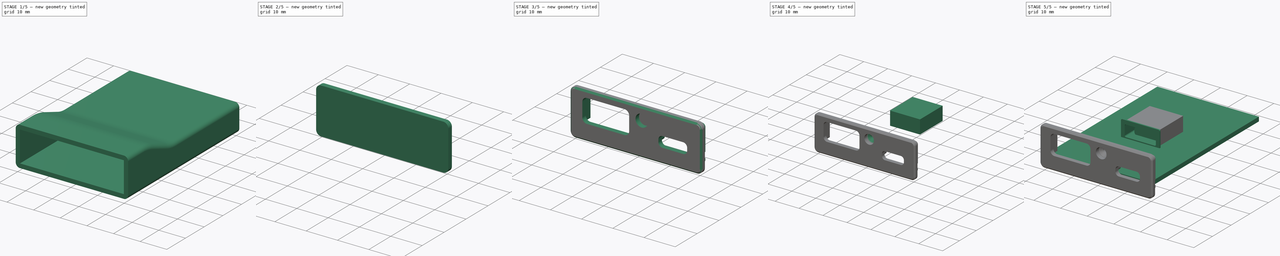
[diagram: build sequence overview — one tinted view per stage of 5, left to right]
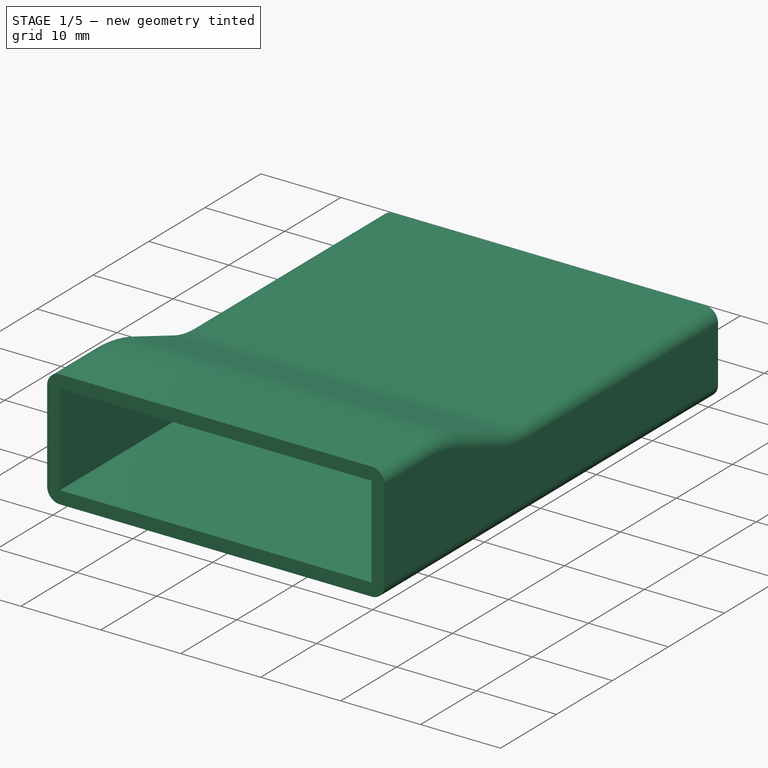
[diagram: stage 1 of 5 — iso view after this stage's code; geometry added in this stage tinted green]
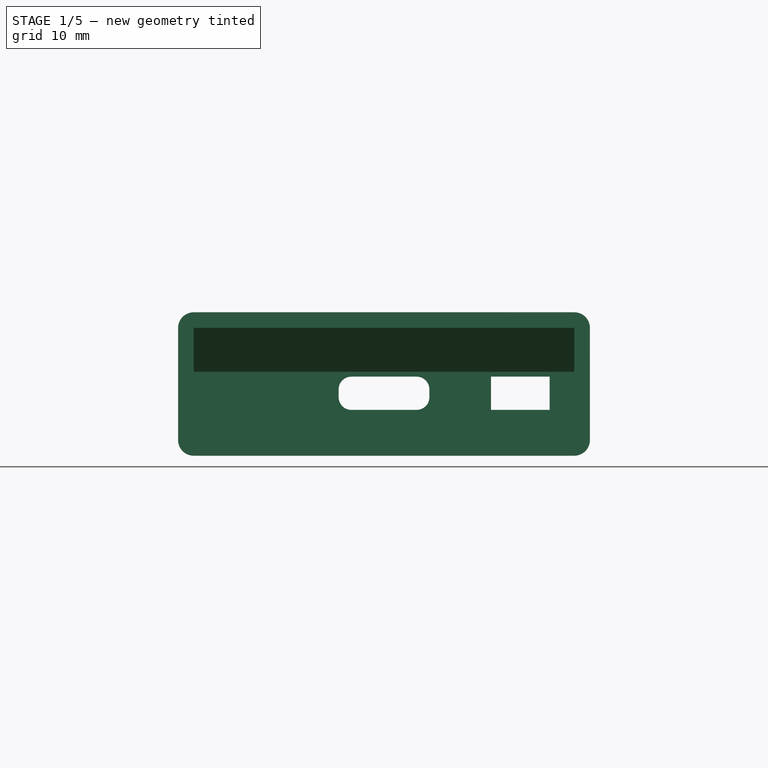
[diagram: stage 1 of 5 — front view after this stage's code; geometry added in this stage tinted green]
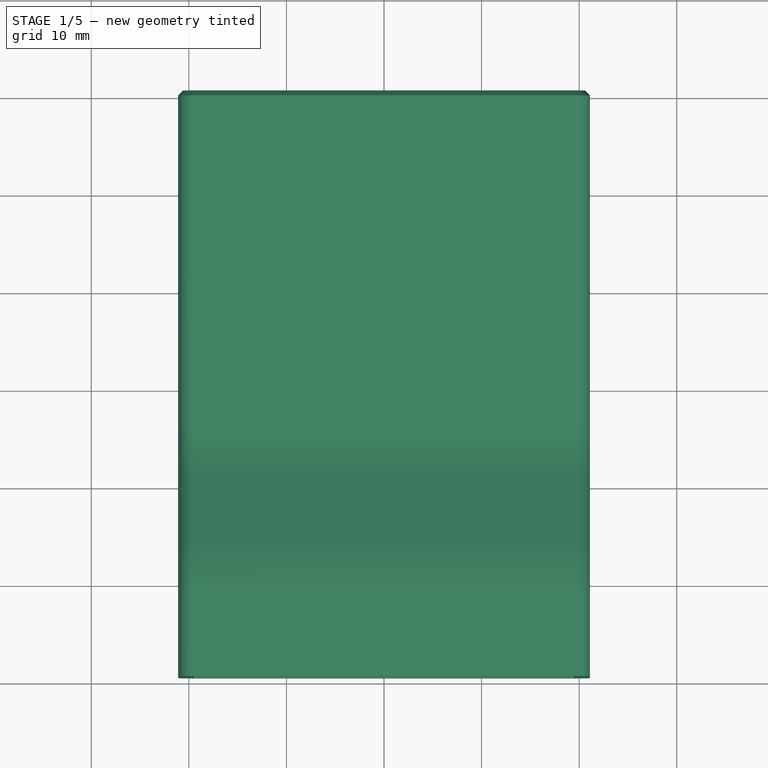
[diagram: stage 1 of 5 — top view after this stage's code; geometry added in this stage tinted green]
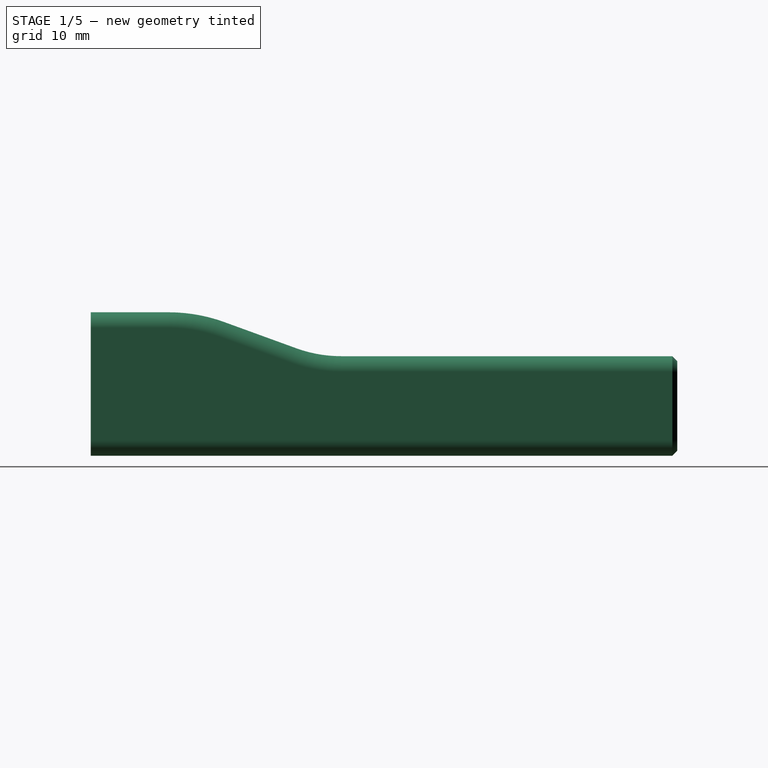
[diagram: stage 1 of 5 — right view after this stage's code; geometry added in this stage tinted green]
FCSTD DOCUMENT  (FreeCAD 0.20R29603 (Git))
Label: usb-sniffer-v6
License: All rights reserved
LicenseURL: http://en.wikipedia.org/wiki/All_rights_reserved
objects: Sketcher::SketchObject×19, PartDesign::Pad×13, PartDesign::Body×7, PartDesign::Pocket×6, PartDesign::Chamfer×3, PartDesign::SubShapeBinder×2, PartDesign::FeatureBase×1, App::Part×1, PartDesign::Thickness×1
note: 75 computed .brp shape members not serialized (recipe doc carries the construction recipe); baked Part::Feature solids carry a one-line shape summary decoded from their .brp

FEATURE [PartDesign::Body] Body005  label="Trigger"
  Group = -> [Sketch012,Pad009,Sketch013,Pad010]
  Origin = -> Origin006
  Placement = pos=(13.97,18.5,1.6) rot=(0,0,1;0rad)
  Tip = -> Pad010
FEATURE [App::Part] Part  label="PCB"
  Group = -> [Body,Body002,Body003,Body004,Body005]
  Origin = -> Origin002
FEATURE [Sketcher::SketchObject] Sketch018
  FullyConstrained = true
  MapMode = 5
  Placement = pos=(0,0,0) rot=(0.57735,0.57735,0.57735;2.0944rad)
  Support = -> [YZ_Plane008]
  sketch-geometry (9):
    g0: LineSegment StartX=-29.45 StartY=9.9 StartZ=0 EndX=-21.45 EndY=9.9 EndZ=0
    g1: LineSegment StartX=-16.3197 StartY=8.99539 StartZ=0 EndX=-8.92684 EndY=6.30461 EndZ=0
    g2: LineSegment StartX=-3.79654 StartY=5.4 StartZ=0 EndX=29.45 EndY=5.4 EndZ=0
    g3: LineSegment StartX=29.45 StartY=5.4 StartZ=0 EndX=29.45 EndY=-1.6 EndZ=0
    g4: LineSegment StartX=29.45 StartY=-1.6 StartZ=0 EndX=-29.45 EndY=-1.6 EndZ=0
    g5: LineSegment StartX=-29.45 StartY=-1.6 StartZ=0 EndX=-29.45 EndY=9.9 EndZ=0
    g6: ArcOfCircle CenterX=-21.45 CenterY=-5.1 CenterZ=0 NormalX=0 NormalY=0 NormalZ=1 AngleXU=0 Radius=15 StartAngle=1.22173 EndAngle=1.5708
    g7: ArcOfCircle CenterX=-3.79654 CenterY=20.4 CenterZ=0 NormalX=0 NormalY=0 NormalZ=1 AngleXU=0 Radius=15 StartAngle=4.36332 EndAngle=4.71239
    g8: GeomPoint X=0 Y=-1.6 Z=0
  constraints (23):
    c: Horizontal(g0)
    c: Horizontal(g2)
    c: Coincident(g3,g2)
    c: Horizontal(g4)
    c: Coincident(g5,g4)
    c: Coincident(g5,g0)
    c: Vertical(g5)
    c: Tangent(g0,g6) = 1.5708
    c: Tangent(g1,g6) = 1.5708
    c: Tangent(g1,g7) = -1.5708
    c: Tangent(g2,g7) = -1.5708
    c: Vertical(g3)
    c: Coincident(g3,g4)
    c: Symmetric(g4,g3,g8)
    c: PointOnObject(g8,g-2)
    c: DistanceY(g8,g-1) = 1.6
    c: Equal(g6,g7)
    c: Radius(g7) = 15
    c: Angle(g2,g1) = 2.79253
    c: DistanceX(g0,g0) = 8
    c: DistanceY(g3,g3) = 7
    c: DistanceY(g5,g5) = 11.5
    c: DistanceX(g4,g4) = 58.9
FEATURE [PartDesign::Pad] Pad014
  Direction = (1,-2e-16,3e-16)
  Length = 39
  Length2 = 10
  Midplane = true
  Placement = pos=(0,0,0) rot=(0.57735,0.57735,0.57735;2.0944rad)
  Profile = -> Sketch018
  ReferenceAxis = -> Sketch018 [N_Axis]
  Type = 0
FEATURE [PartDesign::Thickness] Thickness002
  Base = -> Pad014 [Face6,Face4]
  BaseFeature = -> Pad014
  Intersection = false
  Join = 0
  Mode = 0
  SupportTransform = false
  Value = 1.6
FEATURE [Sketcher::SketchObject] Sketch019
  ExternalGeometry = -> [Thickness002]
  FullyConstrained = true
  MapMode = 5
  Placement = pos=(1.3e-14,29.45,-6.5e-15) rot=(0,0.707107,0.707107;3.14159rad)
  Support = -> [Thickness002]
  sketch-geometry (8):
    g0: LineSegment StartX=-19.5 StartY=7 StartZ=0 EndX=19.5 EndY=7 EndZ=0
    g1: LineSegment StartX=21.1 StartY=5.4 StartZ=0 EndX=21.1 EndY=-1.6 EndZ=0
    g2: LineSegment StartX=19.5 StartY=-3.2 StartZ=0 EndX=-19.5 EndY=-3.2 EndZ=0
    g3: LineSegment StartX=-21.1 StartY=-1.6 StartZ=0 EndX=-21.1 EndY=5.4 EndZ=0
    g4: ArcOfCircle CenterX=-19.5 CenterY=5.4 CenterZ=0 NormalX=0 NormalY=0 NormalZ=1 AngleXU=0 Radius=1.6 StartAngle=1.5708 EndAngle=3.14159
    g5: ArcOfCircle CenterX=19.5 CenterY=5.4 CenterZ=0 NormalX=0 NormalY=0 NormalZ=1 AngleXU=0 Radius=1.6 StartAngle=2.8e-15 EndAngle=1.5708
    g6: ArcOfCircle CenterX=19.5 CenterY=-1.6 CenterZ=0 NormalX=0 NormalY=0 NormalZ=1 AngleXU=0 Radius=1.6 StartAngle=4.71239 EndAngle=6.28319
    g7: ArcOfCircle CenterX=-19.5 CenterY=-1.6 CenterZ=0 NormalX=0 NormalY=0 NormalZ=1 AngleXU=0 Radius=1.6 StartAngle=3.14159 EndAngle=4.71239
  constraints (16):
    c: Coincident(g0,g-3)
    c: Coincident(g0,g-4)
    c: Coincident(g1,g-4)
    c: Coincident(g1,g-5)
    c: Coincident(g2,g-6)
    c: Coincident(g3,g-6)
    c: Coincident(g3,g-3)
    c: Coincident(g4,g3)
    c: Coincident(g5,g0)
    c: Coincident(g6,g1)
    c: Coincident(g7,g2)
    c: Tangent(g4,g0) = 1.5708
    c: Tangent(g5,g1) = 1.5708
    c: Tangent(g2,g6) = 1.5708
    c: Coincident(g2,g-5)
    c: Tangent(g7,g3) = 1.5708
FEATURE [PartDesign::Pad] Pad015
  BaseFeature = -> Thickness002
  Direction = (4e-16,1,-2e-16)
  Length = 1.2
  Length2 = 10
  Profile = -> Sketch019
  ReferenceAxis = -> Sketch019 [N_Axis]
  Refine = true
  Type = 0
FEATURE [PartDesign::Chamfer] Chamfer002
  Angle = 45
  Base = -> Pad015 [Edge66]
  BaseFeature = -> Pad015
  ChamferType = 0
  FlipDirection = false
  Size = 0.5
  Size2 = 1
  SupportTransform = false
  UseAllEdges = false
FEATURE [Sketcher::SketchObject] Sketch020
  ExternalGeometry = -> [Chamfer002]
  FullyConstrained = true
  MapMode = 5
  Placement = pos=(1.41e-14,30.65,-1.04e-14) rot=(0,0.707107,0.707107;3.14159rad)
  Support = -> [Chamfer002]
  sketch-geometry (17):
    g0: LineSegment StartX=-16.97 StartY=4.9 StartZ=0 EndX=-10.97 EndY=4.9 EndZ=0
    g1: LineSegment StartX=-10.97 StartY=4.9 StartZ=0 EndX=-10.97 EndY=1.5 EndZ=0
    g2: LineSegment StartX=-10.97 StartY=1.5 StartZ=0 EndX=-16.97 EndY=1.5 EndZ=0
    g3: LineSegment StartX=-16.97 StartY=1.5 StartZ=0 EndX=-16.97 EndY=4.9 EndZ=0
    g4: ArcOfCircle CenterX=-3.35 CenterY=3.6 CenterZ=0 NormalX=0 NormalY=0 NormalZ=1 AngleXU=0 Radius=1.3 StartAngle=1.5708 EndAngle=3.14159
    g5: LineSegment StartX=-3.35 StartY=4.9 StartZ=0 EndX=3.35 EndY=4.9 EndZ=0
    g6: ArcOfCircle CenterX=3.35 CenterY=3.6 CenterZ=0 NormalX=0 NormalY=0 NormalZ=1 AngleXU=0 Radius=1.3 StartAngle=0 EndAngle=1.5708
    g7: LineSegment StartX=4.65 StartY=3.6 StartZ=0 EndX=4.65 EndY=2.8 EndZ=0
    g8: ArcOfCircle CenterX=3.35 CenterY=2.8 CenterZ=0 NormalX=0 NormalY=0 NormalZ=1 AngleXU=0 Radius=1.3 StartAngle=4.71239 EndAngle=6.28319
    g9: LineSegment StartX=3.35 StartY=1.5 StartZ=0 EndX=-3.35 EndY=1.5 EndZ=0
    g10: ArcOfCircle CenterX=-3.35 CenterY=2.8 CenterZ=0 NormalX=0 NormalY=0 NormalZ=1 AngleXU=0 Radius=1.3 StartAngle=3.14159 EndAngle=4.71239
    g11: LineSegment StartX=-4.65 StartY=2.8 StartZ=0 EndX=-4.65 EndY=3.6 EndZ=0
    g12: GeomPoint X=4.65 Y=1.5 Z=0
    g13: GeomPoint X=0 Y=1.5 Z=0
    g14: GeomPoint X=0 Y=-1.6 Z=0
    g15: LineSegment StartX=-19.5 StartY=1.5 StartZ=0 EndX=19.5 EndY=1.5 EndZ=0
    g16: GeomPoint X=-13.97 Y=1.5 Z=0
  constraints (42):
    c: Coincident(g0,g1)
    c: Coincident(g1,g2)
    c: Coincident(g2,g3)
    c: Coincident(g3,g0)
    c: Horizontal(g0)
    c: Horizontal(g2)
    c: Vertical(g1)
    c: Vertical(g3)
    c: Tangent(g4,g5) = 1.5708
    c: Tangent(g5,g6) = 1.5708
    c: Tangent(g6,g7) = 1.5708
    c: Tangent(g7,g8) = 1.5708
    c: Tangent(g8,g9) = 1.5708
    c: Tangent(g9,g10) = 1.5708
    c: Tangent(g10,g11) = 1.5708
    c: Tangent(g11,g4) = 1.5708
    c: Horizontal(g5)
    c: Horizontal(g9)
    c: Vertical(g7)
    c: Vertical(g11)
    c: Equal(g4,g6)
    c: Equal(g6,g8)
    c: Equal(g8,g10)
    c: PointOnObject(g12,g7)
    c: PointOnObject(g12,g9)
    c: DistanceX(g4,g6) = 9.3
    c: DistanceY(g8,g5) = 3.4
    c: DistanceY(g1,g1) = 3.4
    c: DistanceX(g0,g0) = 6
    c: Radius(g6) = 1.3
    c: Symmetric(g9,g8,g13)
    c: PointOnObject(g13,g-2)
    c: PointOnObject(g14,g-4)
    c: PointOnObject(g14,g-2)
    c: PointOnObject(g15,g-5)
    c: PointOnObject(g15,g-3)
    c: Horizontal(g15)
    c: DistanceY(g-4,g15) = 3.1
    c: PointOnObject(g13,g15)
    c: Symmetric(g2,g1,g16)
    c: PointOnObject(g16,g15)
    c: DistanceX(g16,g13) = 13.97
FEATURE [PartDesign::Pocket] Pocket004
  BaseFeature = -> Chamfer002
  Direction = (-5e-16,-1,4e-16)
  Length = 5
  Length2 = 5
  Profile = -> Sketch020
  ReferenceAxis = -> Sketch020 [N_Axis]
  Type = 1
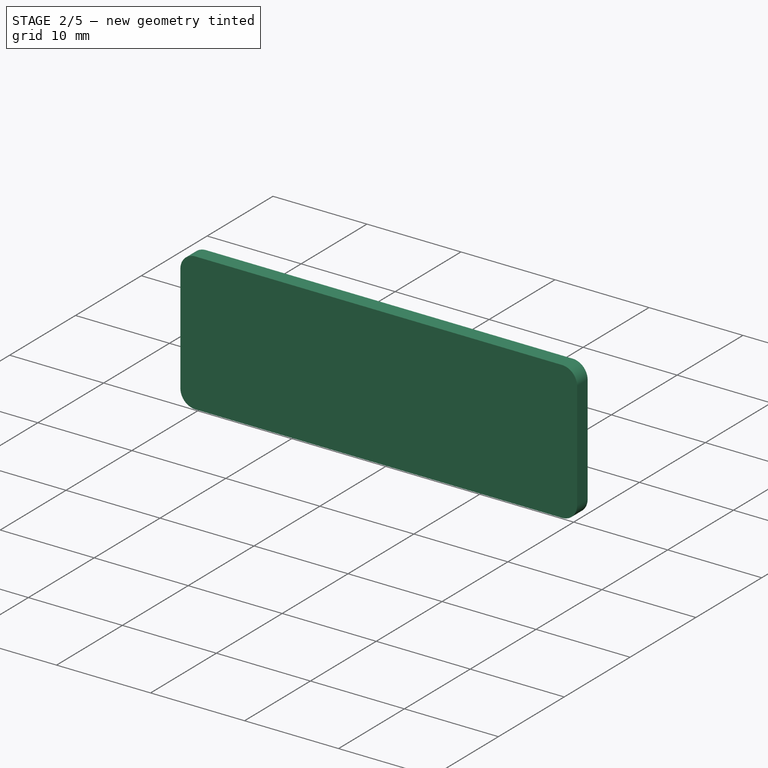
[diagram: stage 2 of 5 — iso view after this stage's code; geometry added in this stage tinted green]
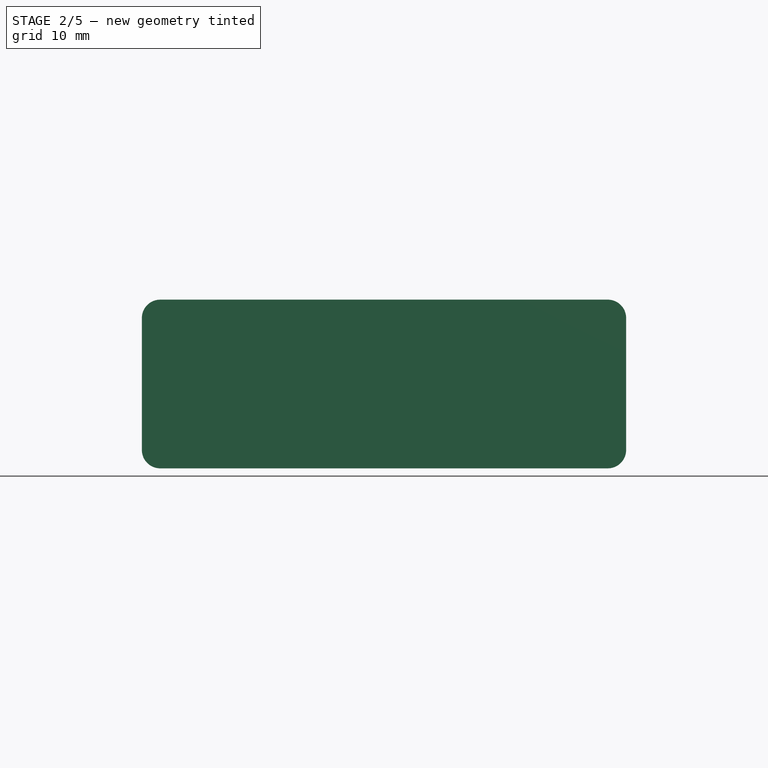
[diagram: stage 2 of 5 — front view after this stage's code; geometry added in this stage tinted green]
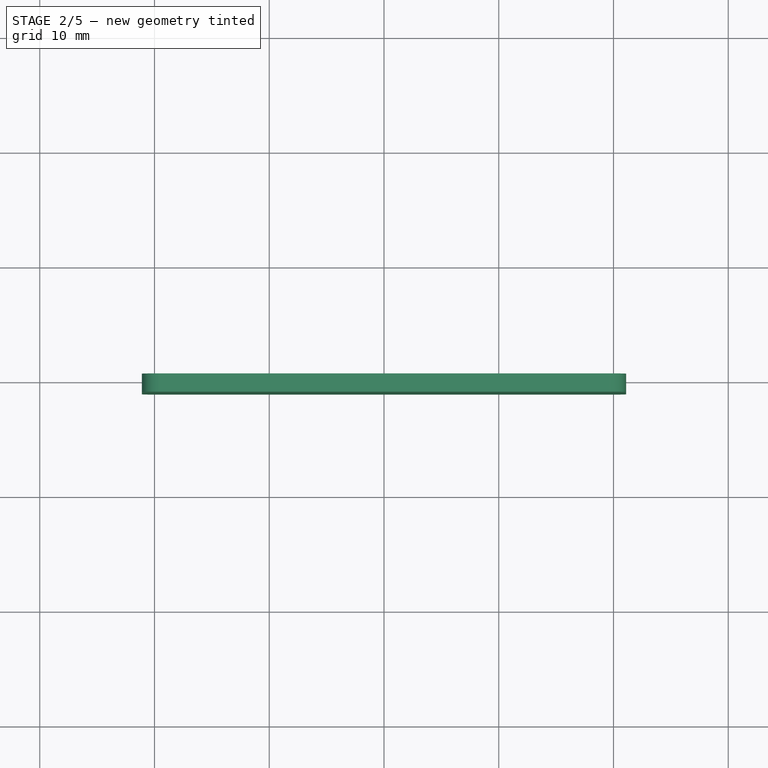
[diagram: stage 2 of 5 — top view after this stage's code; geometry added in this stage tinted green]
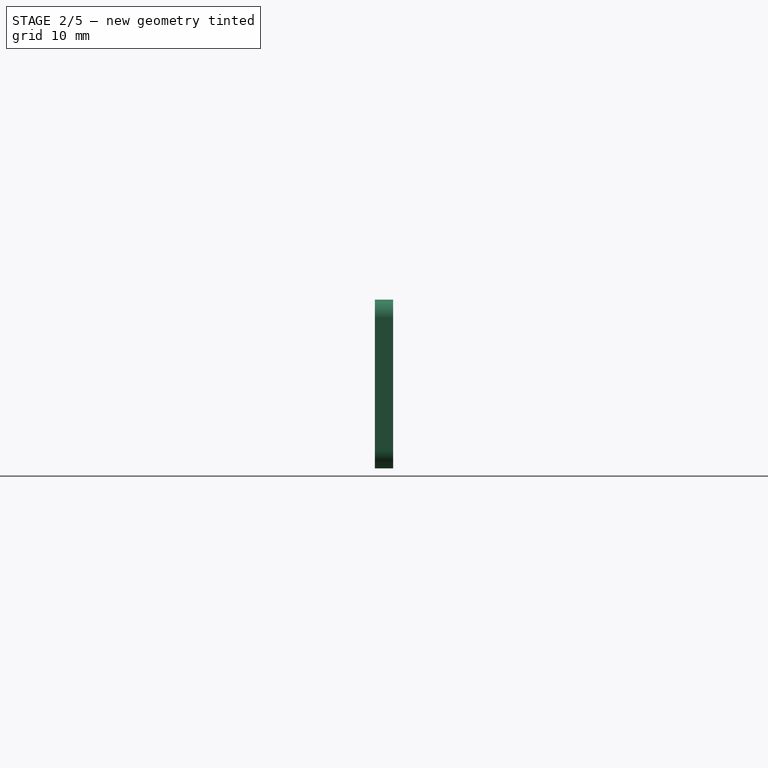
[diagram: stage 2 of 5 — right view after this stage's code; geometry added in this stage tinted green]
FEATURE [Sketcher::SketchObject] Sketch021
  ExternalGeometry = -> [Pocket004]
  FullyConstrained = true
  MapMode = 5
  Placement = pos=(1.35e-14,29.45,-1e-14) rot=(1,0,0;1.5708rad)
  Support = -> [Pocket004]
  sketch-geometry (10):
    g0: LineSegment StartX=10.17 StartY=4.9 StartZ=0 EndX=10.97 EndY=4.9 EndZ=0
    g1: LineSegment StartX=10.97 StartY=4.9 StartZ=0 EndX=10.97 EndY=1.7 EndZ=0
    g2: LineSegment StartX=10.97 StartY=1.7 StartZ=0 EndX=10.17 EndY=1.7 EndZ=0
    g3: LineSegment StartX=10.17 StartY=1.7 StartZ=0 EndX=10.17 EndY=4.9 EndZ=0
    g4: LineSegment StartX=16.97 StartY=4.9 StartZ=0 EndX=17.77 EndY=4.9 EndZ=0
    g5: LineSegment StartX=17.77 StartY=4.9 StartZ=0 EndX=17.77 EndY=1.7 EndZ=0
    g6: LineSegment StartX=17.77 StartY=1.7 StartZ=0 EndX=16.97 EndY=1.7 EndZ=0
    g7: LineSegment StartX=16.97 StartY=1.7 StartZ=0 EndX=16.97 EndY=4.9 EndZ=0
    g8: LineSegment StartX=-19.5 StartY=1.7 StartZ=0 EndX=19.5 EndY=1.7 EndZ=0
    g9: LineSegment StartX=-19.5 StartY=0 StartZ=0 EndX=19.5 EndY=0 EndZ=0
  constraints (30):
    c: Coincident(g0,g1)
    c: Coincident(g1,g2)
    c: Coincident(g2,g3)
    c: Coincident(g3,g0)
    c: Horizontal(g0)
    c: Horizontal(g2)
    c: Vertical(g1)
    c: Vertical(g3)
    c: Coincident(g4,g5)
    c: Coincident(g5,g6)
    c: Coincident(g6,g7)
    c: Coincident(g7,g4)
    c: Horizontal(g4)
    c: Horizontal(g6)
    c: Vertical(g5)
    c: Vertical(g7)
    c: PointOnObject(g8,g-6)
    c: PointOnObject(g8,g-5)
    c: Horizontal(g8)
    c: PointOnObject(g9,g-6)
    c: PointOnObject(g9,g-5)
    c: Horizontal(g9)
    c: PointOnObject(g-1,g9)
    c: DistanceY(g9,g8) = 1.7
    c: Coincident(g0,g-3)
    c: Coincident(g4,g-3)
    c: PointOnObject(g1,g8)
    c: PointOnObject(g6,g8)
    c: Equal(g0,g4)
    c: DistanceX(g0,g0) = 0.8
FEATURE [PartDesign::Pad] Pad016
  BaseFeature = -> Pocket004
  Direction = (-5e-16,-1,4e-16)
  Length = 10
  Length2 = 10
  Profile = -> Sketch021
  ReferenceAxis = -> Sketch021 [N_Axis]
  Type = 0
FEATURE [Sketcher::SketchObject] Sketch022
  ExternalGeometry = -> [Pad016]
  FullyConstrained = true
  MapMode = 5
  Placement = pos=(1.35e-14,29.45,-1e-14) rot=(1,0,0;1.5708rad)
  Support = -> [Pad016]
  sketch-geometry (16):
    g0: LineSegment StartX=-19.5 StartY=1.7 StartZ=0 EndX=19.5 EndY=1.7 EndZ=0
    g1: LineSegment StartX=-18 StartY=2.50001 StartZ=0 EndX=-10 EndY=2.50001 EndZ=0
    g2: LineSegment StartX=-10 StartY=2.50001 StartZ=0 EndX=-10 EndY=1.7 EndZ=0
    g3: LineSegment StartX=-10 StartY=1.7 StartZ=0 EndX=-18 EndY=1.70001 EndZ=0
    g4: LineSegment StartX=-18 StartY=1.70001 StartZ=0 EndX=-18 EndY=2.50001 EndZ=0
    g5: LineSegment StartX=-18 StartY=-0.1 StartZ=0 EndX=-10 EndY=-0.1 EndZ=0
    g6: LineSegment StartX=-10 StartY=-0.1 StartZ=0 EndX=-10 EndY=-0.9 EndZ=0
    g7: LineSegment StartX=-10 StartY=-0.9 StartZ=0 EndX=-18 EndY=-0.9 EndZ=0
    g8: LineSegment StartX=-18 StartY=-0.9 StartZ=0 EndX=-18 EndY=-0.1 EndZ=0
    g9: LineSegment StartX=9.97 StartY=-0.1 StartZ=0 EndX=17.97 EndY=-0.1 EndZ=0
    g10: LineSegment StartX=17.97 StartY=-0.1 StartZ=0 EndX=17.97 EndY=-0.9 EndZ=0
    g11: LineSegment StartX=17.97 StartY=-0.9 StartZ=0 EndX=9.97 EndY=-0.9 EndZ=0
    g12: LineSegment StartX=9.97 StartY=-0.9 StartZ=0 EndX=9.97 EndY=-0.1 EndZ=0
    g13: GeomPoint X=13.97 Y=-0.1 Z=0
    g14: LineSegment StartX=-19.5 StartY=-0.1 StartZ=0 EndX=19.5 EndY=-0.1 EndZ=0
    g15: GeomPoint X=19.5 Y=0 Z=0
  constraints (47):
    c: PointOnObject(g0,g-4)
    c: PointOnObject(g0,g-3)
    c: Horizontal(g0)
    c: Coincident(g1,g2)
    c: Coincident(g2,g3)
    c: Coincident(g3,g4)
    c: Coincident(g4,g1)
    c: Horizontal(g1)
    c: Vertical(g2)
    c: Vertical(g4)
    c: PointOnObject(g2,g0)
    c: Coincident(g5,g6)
    c: Coincident(g6,g7)
    c: Coincident(g7,g8)
    c: Coincident(g8,g5)
    c: Horizontal(g5)
    c: Horizontal(g7)
    c: Vertical(g6)
    c: Vertical(g8)
    c: Coincident(g9,g10)
    c: Coincident(g10,g11)
    c: Coincident(g11,g12)
    c: Coincident(g12,g9)
    c: Horizontal(g9)
    c: Horizontal(g11)
    c: Vertical(g10)
    c: Vertical(g12)
    c: Vertical(g2,g5)
    c: Vertical(g3,g5)
    c: Equal(g4,g8)
    c: Equal(g8,g12)
    c: Equal(g3,g5)
    c: Equal(g5,g9)
    c: DistanceX(g1,g1) = 8
    c: DistanceX(g5,g-1) = 10
    c: DistanceY(g10,g10) = 0.8
    c: Symmetric(g9,g9,g13)
    c: DistanceX(g-1,g13) = 13.97
    c: PointOnObject(g14,g-4)
    c: PointOnObject(g14,g-3)
    c: Horizontal(g14)
    c: PointOnObject(g9,g14)
    c: PointOnObject(g5,g14)
    c: PointOnObject(g15,g-1)
    c: PointOnObject(g15,g-3)
    c: DistanceY(g15,g0) = 1.7
    c: DistanceY(g14,g15) = 0.1
FEATURE [PartDesign::Pad] Pad017
  BaseFeature = -> Pad016
  Direction = (-5e-16,-1,4e-16)
  Length = 2
  Length2 = 10
  Profile = -> Sketch022
  ReferenceAxis = -> Sketch022 [N_Axis]
  Type = 0
FEATURE [PartDesign::SubShapeBinder] Binder
  BindCopyOnChange = 0
  BindMode = 0
  ClaimChildren = false
  Context = -> Body008 [Binder.]
  Fuse = false
  MakeFace = true
  OffsetFill = false
  OffsetIntersection = false
  OffsetJoinType = 0
  OffsetOpenResult = false
  PartialLoad = false
  Relative = true
  Support = -> [Body007[Pad017.Face7]]
  _Version = 2
FEATURE [Sketcher::SketchObject] Sketch
  ExternalGeometry = -> [Binder]
  FullyConstrained = true
  MapMode = 5
  Placement = pos=(-1.3e-14,-29.45,6.5e-15) rot=(1,0,0;1.5708rad)
  Support = -> [Binder]
  sketch-geometry (8):
    g0: LineSegment StartX=-19.5 StartY=11.5 StartZ=0 EndX=19.5 EndY=11.5 EndZ=0
    g1: LineSegment StartX=21.1 StartY=9.9 StartZ=0 EndX=21.1 EndY=-1.6 EndZ=0
    g2: LineSegment StartX=-21.1 StartY=9.9 StartZ=0 EndX=-21.1 EndY=-1.6 EndZ=0
    g3: LineSegment StartX=-19.5 StartY=-3.2 StartZ=0 EndX=19.5 EndY=-3.2 EndZ=0
    g4: ArcOfCircle CenterX=-19.5 CenterY=9.9 CenterZ=0 NormalX=0 NormalY=0 NormalZ=1 AngleXU=0 Radius=1.6 StartAngle=1.5708 EndAngle=3.14159
    g5: ArcOfCircle CenterX=19.5 CenterY=9.9 CenterZ=0 NormalX=0 NormalY=0 NormalZ=1 AngleXU=0 Radius=1.6 StartAngle=5e-15 EndAngle=1.5708
    g6: ArcOfCircle CenterX=19.5 CenterY=-1.6 CenterZ=0 NormalX=0 NormalY=0 NormalZ=1 AngleXU=0 Radius=1.6 StartAngle=4.71239 EndAngle=6.28319
    g7: ArcOfCircle CenterX=-19.5 CenterY=-1.6 CenterZ=0 NormalX=0 NormalY=0 NormalZ=1 AngleXU=0 Radius=1.6 StartAngle=3.14159 EndAngle=4.71239
  constraints (16):
    c: Coincident(g0,g5)
    c: Coincident(g0,g-4)
    c: Coincident(g1,g-4)
    c: Coincident(g1,g6)
    c: Coincident(g1,g-5)
    c: Coincident(g3,g-5)
    c: Coincident(g7,g3)
    c: Coincident(g3,g-6)
    c: Coincident(g2,g-6)
    c: Coincident(g4,g2)
    c: Tangent(g0,g4) = 1.5708
    c: Coincident(g0,g-3)
    c: Coincident(g2,g-3)
    c: Tangent(g5,g1) = 1.5708
    c: Tangent(g6,g3) = -1.5708
    c: Tangent(g7,g2) = -1.5708
FEATURE [PartDesign::Pad] Pad
  Direction = (-4e-16,-1,2e-16)
  Length = 1.6
  Length2 = 10
  Profile = -> Sketch
  ReferenceAxis = -> Sketch [N_Axis]
  Type = 0
FEATURE [Sketcher::SketchObject] Sketch025
  AttachmentOffset = pos=(0,0,-3) rot=(0,0,1;0rad)
  ExternalGeometry = -> [Pad017]
  FullyConstrained = true
  MapMode = 5
  Placement = pos=(-1.16e-14,-26.45,5.8e-15) rot=(1,0,0;1.5708rad)
  Support = -> [Pad017]
  sketch-geometry (6):
    g0: ArcOfCircle CenterX=2 CenterY=7.6 CenterZ=0 NormalX=0 NormalY=0 NormalZ=1 AngleXU=0 Radius=2.2 StartAngle=3.14159 EndAngle=6.28319
    g1: LineSegment StartX=-2.5 StartY=9.9 StartZ=0 EndX=6.5 EndY=9.9 EndZ=0
    g2: ArcOfCircle CenterX=6.5 CenterY=7.6 CenterZ=0 NormalX=0 NormalY=0 NormalZ=1 AngleXU=0 Radius=2.3 StartAngle=1.5708 EndAngle=3.14159
    g3: ArcOfCircle CenterX=-2.5 CenterY=7.6 CenterZ=0 NormalX=0 NormalY=0 NormalZ=1 AngleXU=0 Radius=2.3 StartAngle=-4e-14 EndAngle=1.5708
    g4: GeomPoint X=2 Y=9.9 Z=0
    g5: GeomPoint X=2 Y=5.4 Z=0
  constraints (15):
    c: Horizontal(g0,g0)
    c: Horizontal(g0,g0)
    c: Horizontal(g1)
    c: Equal(g3,g2)
    c: Tangent(g2,g1) = 1.5708
    c: Tangent(g3,g1) = 1.5708
    c: Symmetric(g1,g1,g4)
    c: PointOnObject(g4,g-4)
    c: Radius(g0) = 2.2
    c: Coincident(g0,g3)
    c: Tangent(g0,g2) = 1.5708
    c: DistanceX(g-1,g4) = 2
    c: PointOnObject(g5,g0)
    c: PointOnObject(g5,g-3)
    c: Tangent(g0,g-3)
FEATURE [PartDesign::Pad] Pad019
  BaseFeature = -> Pad017
  Direction = (-4e-16,-1,2e-16)
  Length = 10
  Length2 = 10
  Profile = -> Sketch025
  ReferenceAxis = -> Sketch025 [N_Axis]
  Reversed = true
  Type = 2
FEATURE [Sketcher::SketchObject] Sketch026
  ExternalGeometry = -> [Pad019]
  FullyConstrained = true
  MapMode = 5
  Placement = pos=(-1.03e-14,-26.45,1.27e-14) rot=(1,0,0;1.5708rad)
  Support = -> [Pad019]
  sketch-geometry (1):
    g0: Circle CenterX=2 CenterY=7.6 CenterZ=0 NormalX=0 NormalY=0 NormalZ=1 AngleXU=0 Radius=1.3
  constraints (2):
    c: Coincident(g0,g-3)
    c: Diameter(g0) = 2.6
FEATURE [PartDesign::Pocket] Pocket005
  BaseFeature = -> Pad019
  Direction = (4e-16,1,-4e-16)
  Length = 8
  Length2 = 5
  Profile = -> Sketch026
  ReferenceAxis = -> Sketch026 [N_Axis]
  Type = 0
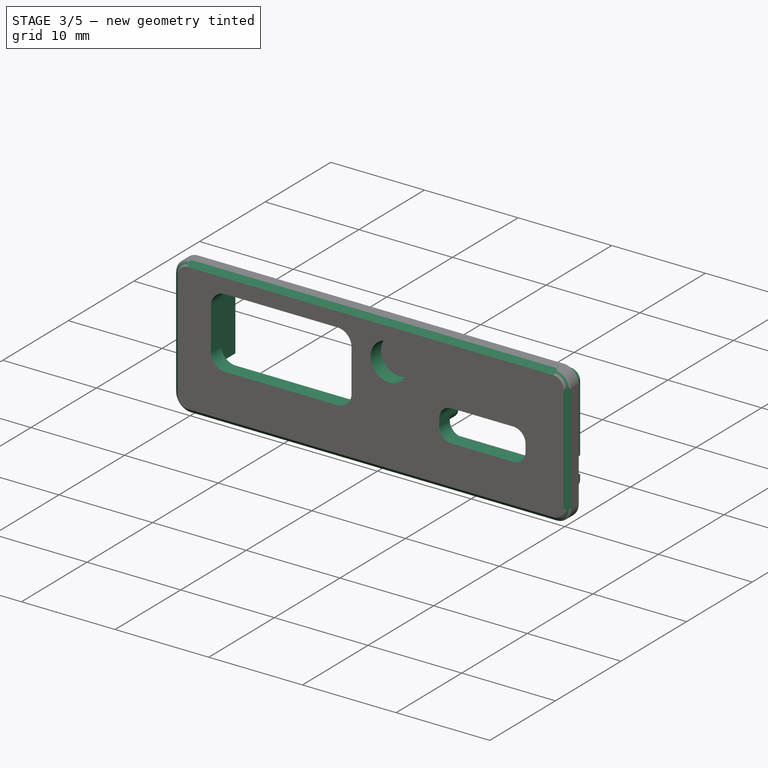
[diagram: stage 3 of 5 — iso view after this stage's code; geometry added in this stage tinted green]
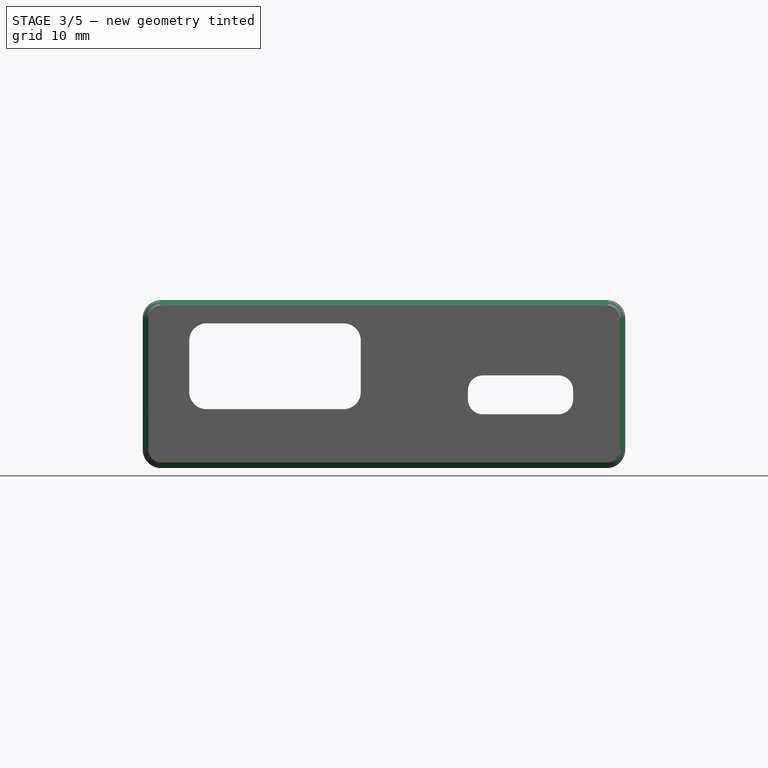
[diagram: stage 3 of 5 — front view after this stage's code; geometry added in this stage tinted green]
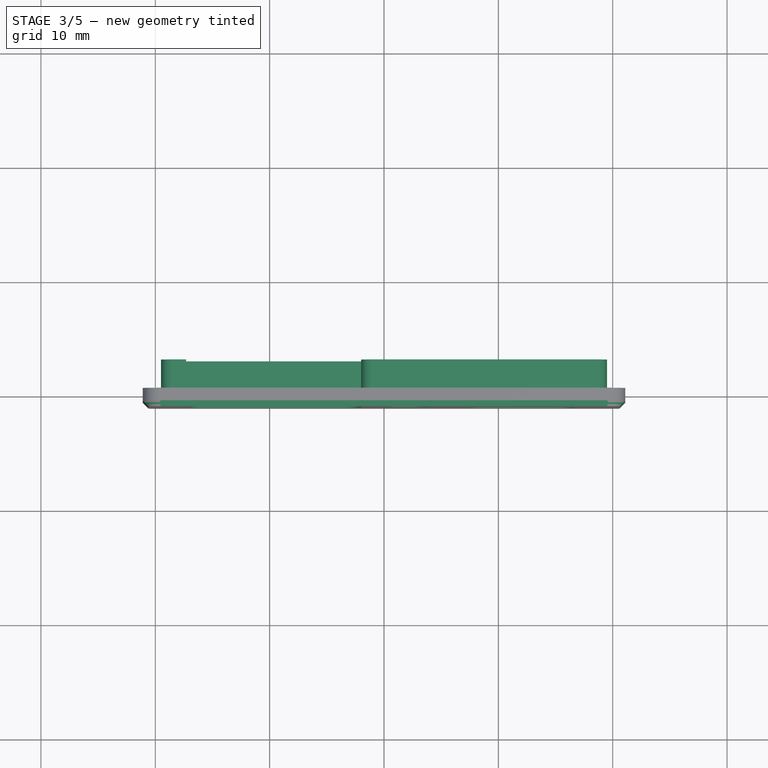
[diagram: stage 3 of 5 — top view after this stage's code; geometry added in this stage tinted green]
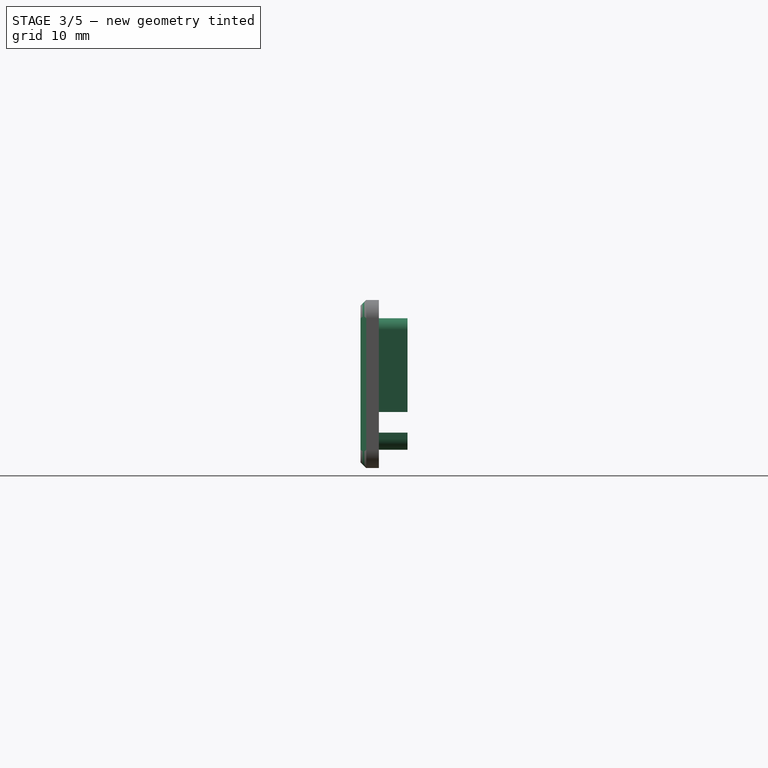
[diagram: stage 3 of 5 — right view after this stage's code; geometry added in this stage tinted green]
FEATURE [PartDesign::Chamfer] Chamfer
  Angle = 45
  Base = -> Pad [Edge7]
  BaseFeature = -> Pad
  ChamferType = 0
  FlipDirection = false
  Size = 0.5
  Size2 = 1
  SupportTransform = false
  UseAllEdges = false
FEATURE [Sketcher::SketchObject] Sketch023
  ExternalGeometry = -> [Chamfer]
  FullyConstrained = false
  MapMode = 5
  Placement = pos=(-1.35e-14,-29.45,6.8e-15) rot=(0,0.707107,0.707107;3.14159rad)
  Support = -> [Chamfer]
  sketch-geometry (23):
    g0: LineSegment StartX=-21.1 StartY=1.5 StartZ=0 EndX=21.1 EndY=1.5 EndZ=0
    g1: GeomPoint X=21.1 Y=0 Z=0
    g2: LineSegment StartX=3.53 StartY=9.45 StartZ=0 EndX=15.53 EndY=9.45 EndZ=0
    g3: LineSegment StartX=17.03 StartY=7.95 StartZ=0 EndX=17.03 EndY=3.45 EndZ=0
    g4: LineSegment StartX=15.53 StartY=1.95 StartZ=0 EndX=3.53 EndY=1.95 EndZ=0
    g5: LineSegment StartX=2.03 StartY=3.45 StartZ=0 EndX=2.03 EndY=7.95 EndZ=0
    g6: ArcOfCircle CenterX=-15.24 CenterY=3.6 CenterZ=0 NormalX=0 NormalY=0 NormalZ=1 AngleXU=0 Radius=1.3 StartAngle=1.5708 EndAngle=3.14159
    g7: LineSegment StartX=-15.24 StartY=4.9 StartZ=0 EndX=-8.64 EndY=4.9 EndZ=0
    g8: ArcOfCircle CenterX=-8.64 CenterY=3.6 CenterZ=0 NormalX=0 NormalY=0 NormalZ=1 AngleXU=0 Radius=1.3 StartAngle=1e-16 EndAngle=1.5708
    g9: LineSegment StartX=-7.34 StartY=3.6 StartZ=0 EndX=-7.34 EndY=2.8 EndZ=0
    g10: ArcOfCircle CenterX=-8.64 CenterY=2.8 CenterZ=0 NormalX=0 NormalY=0 NormalZ=1 AngleXU=0 Radius=1.3 StartAngle=4.71239 EndAngle=6.28319
    g11: LineSegment StartX=-8.64 StartY=1.5 StartZ=0 EndX=-15.24 EndY=1.5 EndZ=0
    g12: ArcOfCircle CenterX=-15.24 CenterY=2.8 CenterZ=0 NormalX=0 NormalY=0 NormalZ=1 AngleXU=0 Radius=1.3 StartAngle=3.14159 EndAngle=4.71239
    g13: LineSegment StartX=-16.54 StartY=2.8 StartZ=0 EndX=-16.54 EndY=3.6 EndZ=0
    g14: GeomPoint X=-16.54 Y=4.9 Z=0
    g15: GeomPoint X=-7.34 Y=1.5 Z=0
    g16: GeomPoint X=-11.94 Y=1.5 Z=0
    g17: GeomPoint X=9.53 Y=1.95 Z=0
    g18: GeomPoint X=9.53 Y=5.7 Z=0
    g19: ArcOfCircle CenterX=3.53 CenterY=7.95 CenterZ=0 NormalX=0 NormalY=0 NormalZ=1 AngleXU=0 Radius=1.5 StartAngle=1.5708 EndAngle=3.14159
    g20: ArcOfCircle CenterX=15.53 CenterY=7.95 CenterZ=0 NormalX=0 NormalY=0 NormalZ=1 AngleXU=0 Radius=1.5 StartAngle=1e-16 EndAngle=1.5708
    g21: ArcOfCircle CenterX=15.53 CenterY=3.45 CenterZ=0 NormalX=0 NormalY=0 NormalZ=1 AngleXU=0 Radius=1.5 StartAngle=4.71239 EndAngle=6.28319
    g22: ArcOfCircle CenterX=3.53 CenterY=3.45 CenterZ=0 NormalX=0 NormalY=0 NormalZ=1 AngleXU=0 Radius=1.5 StartAngle=3.14159 EndAngle=4.71239
  constraints (53):
    c: PointOnObject(g0,g-3)
    c: PointOnObject(g0,g-4)
    c: Horizontal(g0)
    c: PointOnObject(g1,g-4)
    c: PointOnObject(g1,g-1)
    c: DistanceY(g-5,g0) = 4.7
    c: Horizontal(g2)
    c: Horizontal(g4)
    c: Vertical(g3)
    c: Vertical(g5)
    c: Tangent(g6,g7) = 1.5708
    c: Tangent(g7,g8) = 1.5708
    c: Tangent(g8,g9) = 1.5708
    c: Tangent(g9,g10) = 1.5708
    c: Tangent(g10,g11) = 1.5708
    c: Tangent(g11,g12) = 1.5708
    c: Tangent(g12,g13) = 1.5708
    c: Tangent(g13,g6) = 1.5708
    c: Horizontal(g7)
    c: Horizontal(g11)
    c: Vertical(g9)
    c: Vertical(g13)
    c: Equal(g6,g8)
    c: Equal(g8,g10)
    c: Equal(g10,g12)
    c: PointOnObject(g14,g7)
    c: PointOnObject(g14,g13)
    c: PointOnObject(g15,g9)
    c: PointOnObject(g15,g11)
    c: DistanceX(g6,g8) = 9.2
    c: Radius(g8) = 1.3
    c: DistanceY(g10,g7) = 3.4
    c: Symmetric(g11,g10,g16)
    c: DistanceX(g16,g-1) = 11.94
    c: DistanceX(g-1,g17) = 9.53
    c: PointOnObject(g16,g0)
    c: DistanceY(g0,g18) = 4.2
    c: Tangent(g5,g19) = 1.5708
    c: Tangent(g2,g19) = 1.5708
    c: Tangent(g2,g20) = 1.5708
    c: Tangent(g3,g20) = 1.5708
    c: Tangent(g4,g21) = 1.5708
    c: Tangent(g3,g21) = 1.5708
    c: Tangent(g5,g22) = 1.5708
    c: Tangent(g4,g22) = 1.5708
    c: DistanceX(g5,g3) = 15
    c: DistanceY(g4,g2) = 7.5
    c: Equal(g22,g19)
    c: Equal(g19,g20)
    c: Equal(g20,g21)
    c: Symmetric(g22,g20,g18)
    c: Radius(g20) = 1.5
    c: Vertical(g18,g17)
FEATURE [PartDesign::Pocket] Pocket
  BaseFeature = -> Chamfer
  Direction = (-5e-16,-1,2e-16)
  Length = 5
  Length2 = 5
  Profile = -> Sketch023
  ReferenceAxis = -> Sketch023 [N_Axis]
  Type = 1
FEATURE [PartDesign::Body] Body007  label="Case"
  Group = -> [Sketch018,Pad014,Thickness002,Sketch019,Pad015,Chamfer002,Sketch020,Pocket004,Sketch021,Pad016,Sketch022,Pad017,Sketch025,Pad019,Sketch026,Pocket005]
  Origin = -> Origin008
  Tip = -> Pocket005
FEATURE [PartDesign::SubShapeBinder] Binder001
  BindCopyOnChange = 0
  BindMode = 0
  ClaimChildren = false
  Context = -> Body007 [Binder001.]
  Fuse = false
  MakeFace = true
  OffsetFill = false
  OffsetIntersection = false
  OffsetJoinType = 0
  OffsetOpenResult = false
  PartialLoad = false
  Relative = true
  Support = -> [Pocket005[Face52]]
  _Version = 2
FEATURE [Sketcher::SketchObject] Sketch024
  ExternalGeometry = -> [Binder,Binder001]
  FullyConstrained = true
  MapMode = 5
  Placement = pos=(-1.3e-14,-29.45,6.5e-15) rot=(1,0,0;1.5708rad)
  Support = -> [Binder]
  sketch-geometry (31):
    g0: LineSegment StartX=-1 StartY=9.9 StartZ=0 EndX=18.5 EndY=9.9 EndZ=0
    g1: LineSegment StartX=16 StartY=5.5 StartZ=0 EndX=7.5 EndY=5.5 EndZ=0
    g2: LineSegment StartX=-2 StartY=2.7 StartZ=0 EndX=-2 EndY=8.9 EndZ=0
    g3: LineSegment StartX=19.5 StartY=8.9 StartZ=0 EndX=19.5 EndY=1.7 EndZ=0
    g4: LineSegment StartX=19.5 StartY=1.7 StartZ=0 EndX=17 EndY=1.7 EndZ=0
    g5: LineSegment StartX=17 StartY=1.7 StartZ=0 EndX=17 EndY=4.5 EndZ=0
    g6: LineSegment StartX=-19.5 StartY=-0.1 StartZ=0 EndX=7 EndY=-0.1 EndZ=0
    g7: LineSegment StartX=19.5 StartY=-0.1 StartZ=0 EndX=19.5 EndY=-0.6 EndZ=0
    g8: LineSegment StartX=18.5 StartY=-1.6 StartZ=0 EndX=-18.5 EndY=-1.6 EndZ=0
    g9: LineSegment StartX=-19.5 StartY=-0.6 StartZ=0 EndX=-19.5 EndY=-0.1 EndZ=0
    g10: LineSegment StartX=-18.5 StartY=9.9 StartZ=0 EndX=-17.3 EndY=9.9 EndZ=0
    g11: LineSegment StartX=-17.3 StartY=9.9 StartZ=0 EndX=-17.3 EndY=1.7 EndZ=0
    g12: LineSegment StartX=-17.3 StartY=1.7 StartZ=0 EndX=-19.5 EndY=1.7 EndZ=0
    g13: LineSegment StartX=-19.5 StartY=1.7 StartZ=0 EndX=-19.5 EndY=8.9 EndZ=0
    g14: LineSegment StartX=-19.5 StartY=1.7 StartZ=0 EndX=19.5 EndY=1.7 EndZ=0
    g15: LineSegment StartX=-19.5 StartY=-0.1 StartZ=0 EndX=19.5 EndY=-0.1 EndZ=0
    g16: LineSegment StartX=7 StartY=-0.1 StartZ=0 EndX=7 EndY=-0.9 EndZ=0
    g17: LineSegment StartX=7 StartY=-0.9 StartZ=0 EndX=17 EndY=-0.9 EndZ=0
    g18: LineSegment StartX=17 StartY=-0.9 StartZ=0 EndX=17 EndY=-0.1 EndZ=0
    g19: LineSegment StartX=17 StartY=-0.1 StartZ=0 EndX=19.5 EndY=-0.1 EndZ=0
    g20: ArcOfCircle CenterX=-18.5 CenterY=-0.6 CenterZ=0 NormalX=0 NormalY=0 NormalZ=1 AngleXU=0 Radius=1 StartAngle=3.14159 EndAngle=4.71239
    g21: ArcOfCircle CenterX=18.5 CenterY=-0.6 CenterZ=0 NormalX=0 NormalY=0 NormalZ=1 AngleXU=0 Radius=1 StartAngle=4.71239 EndAngle=6.28319
    g22: ArcOfCircle CenterX=18.5 CenterY=8.9 CenterZ=0 NormalX=0 NormalY=0 NormalZ=1 AngleXU=0 Radius=1 StartAngle=3e-16 EndAngle=1.5708
    g23: ArcOfCircle CenterX=-18.5 CenterY=8.9 CenterZ=0 NormalX=0 NormalY=0 NormalZ=1 AngleXU=0 Radius=1 StartAngle=1.5708 EndAngle=3.14159
    g24: ArcOfCircle CenterX=16 CenterY=4.5 CenterZ=0 NormalX=0 NormalY=0 NormalZ=1 AngleXU=0 Radius=1 StartAngle=1e-16 EndAngle=1.5708
    g25: ArcOfCircle CenterX=-1 CenterY=2.7 CenterZ=0 NormalX=0 NormalY=0 NormalZ=1 AngleXU=0 Radius=1 StartAngle=3.14159 EndAngle=4.71239
    g26: LineSegment StartX=6.5 StartY=4.5 StartZ=0 EndX=6.5 EndY=2.7 EndZ=0
    g27: LineSegment StartX=5.5 StartY=1.7 StartZ=0 EndX=-1 EndY=1.7 EndZ=0
    g28: ArcOfCircle CenterX=5.5 CenterY=2.7 CenterZ=0 NormalX=0 NormalY=0 NormalZ=1 AngleXU=0 Radius=1 StartAngle=4.71239 EndAngle=6.28319
    g29: ArcOfCircle CenterX=7.5 CenterY=4.5 CenterZ=0 NormalX=0 NormalY=0 NormalZ=1 AngleXU=0 Radius=1 StartAngle=1.5708 EndAngle=3.14159
    g30: ArcOfCircle CenterX=-1 CenterY=8.9 CenterZ=0 NormalX=0 NormalY=0 NormalZ=1 AngleXU=0 Radius=1 StartAngle=1.5708 EndAngle=3.14159
  constraints (84):
    c: Horizontal(g0)
    c: Horizontal(g1)
    c: Vertical(g2)
    c: Coincident(g3,g4)
    c: Coincident(g4,g5)
    c: Horizontal(g4)
    c: Vertical(g3)
    c: Vertical(g5)
    c: Coincident(g19,g7)
    c: Coincident(g9,g6)
    c: Horizontal(g6)
    c: Vertical(g7)
    c: Vertical(g9)
    c: Coincident(g10,g11)
    c: Coincident(g11,g12)
    c: Coincident(g12,g13)
    c: Horizontal(g10)
    c: Horizontal(g12)
    c: Vertical(g11)
    c: PointOnObject(g14,g-6)
    c: PointOnObject(g14,g-4)
    c: Horizontal(g14)
    c: PointOnObject(g15,g-6)
    c: Horizontal(g15)
    c: DistanceY(g-5,g15) = 1.5
    c: DistanceY(g-5,g14) = 3.3
    c: Coincident(g12,g14)
    c: DistanceX(g-6,g10) = 2.2
    c: DistanceX(g4,g4) = 2.5
    c: Coincident(g17,g16)
    c: Horizontal(g17)
    c: Coincident(g18,g17)
    c: Vertical(g18)
    c: Coincident(g6,g16)
    c: Coincident(g19,g18)
    c: Vertical(g16)
    c: Horizontal(g6,g18)
    c: Horizontal(g19)
    c: DistanceY(g18,g18) = 0.8
    c: DistanceX(g17,g17) = 10
    c: Coincident(g7,g15)
    c: DistanceX(g19,g19) = 2.5
    c: PointOnObject(g3,g14)
    c: Tangent(g9,g20) = 1.5708
    c: Tangent(g8,g20) = 1.5708
    c: Tangent(g8,g21) = 1.5708
    c: Tangent(g7,g21) = 1.5708
    c: Tangent(g0,g22) = 1.5708
    c: Tangent(g3,g22) = 1.5708
    c: Tangent(g13,g23) = 1.5708
    c: Tangent(g10,g23) = 1.5708
    c: Tangent(g1,g24) = -1.5708
    c: Tangent(g5,g24) = -1.5708
    c: Tangent(g2,g25) = 1.5708
    c: Vertical(g26)
    c: Horizontal(g27)
    c: Tangent(g27,g28) = 1.5708
    c: Tangent(g26,g28) = 1.5708
    c: Tangent(g26,g29) = -1.5708
    c: Tangent(g1,g29) = -1.5708
    c: Tangent(g2,g30) = 1.5708
    c: Tangent(g0,g30) = 1.5708
    c: PointOnObject(g27,g14)
    c: Equal(g25,g30)
    c: Equal(g30,g28)
    c: Equal(g28,g29)
    c: Equal(g29,g24)
    c: Equal(g24,g22)
    c: Equal(g22,g21)
    c: Equal(g21,g20)
    c: Equal(g20,g23)
    c: DistanceY(g4,g1) = 3.8
    c: DistanceX(g26,g5) = 10.5
    c: PointOnObject(g3,g-4)
    c: PointOnObject(g0,g-3)
    c: PointOnObject(g10,g-3)
    c: PointOnObject(g13,g-6)
    c: DistanceX(g2,g26) = 8.5
    c: PointOnObject(g7,g-4)
    c: PointOnObject(g8,g-5)
    c: PointOnObject(g8,g-5)
    c: PointOnObject(g9,g-6)
    c: Radius(g22) = 1
    c: Tangent(g25,g27) = 1.5708
FEATURE [PartDesign::Pad] Pad018
  BaseFeature = -> Pocket
  Direction = (-4e-16,-1,2e-16)
  Length = 2.5
  Length2 = 10
  Profile = -> Sketch024
  ReferenceAxis = -> Sketch024 [N_Axis]
  Reversed = true
  Type = 0
FEATURE [Sketcher::SketchObject] Sketch028
  ExternalGeometry = -> [Binder001]
  FullyConstrained = true
  MapMode = 5
  Placement = pos=(-1.43e-14,-31.05,7.1e-15) rot=(1,0,0;1.5708rad)
  Support = -> [Pad018]
  sketch-geometry (1):
    g0: Circle CenterX=2 CenterY=7.6 CenterZ=0 NormalX=0 NormalY=0 NormalZ=1 AngleXU=0 Radius=2
  constraints (2):
    c: Coincident(g0,g-3)
    c: Diameter(g0) = 4
FEATURE [PartDesign::Pocket] Pocket006
  BaseFeature = -> Pad018
  Direction = (5e-16,1,-2e-16)
  Length = 1.6
  Length2 = 5
  Profile = -> Sketch028
  ReferenceAxis = -> Sketch028 [N_Axis]
  Type = 0
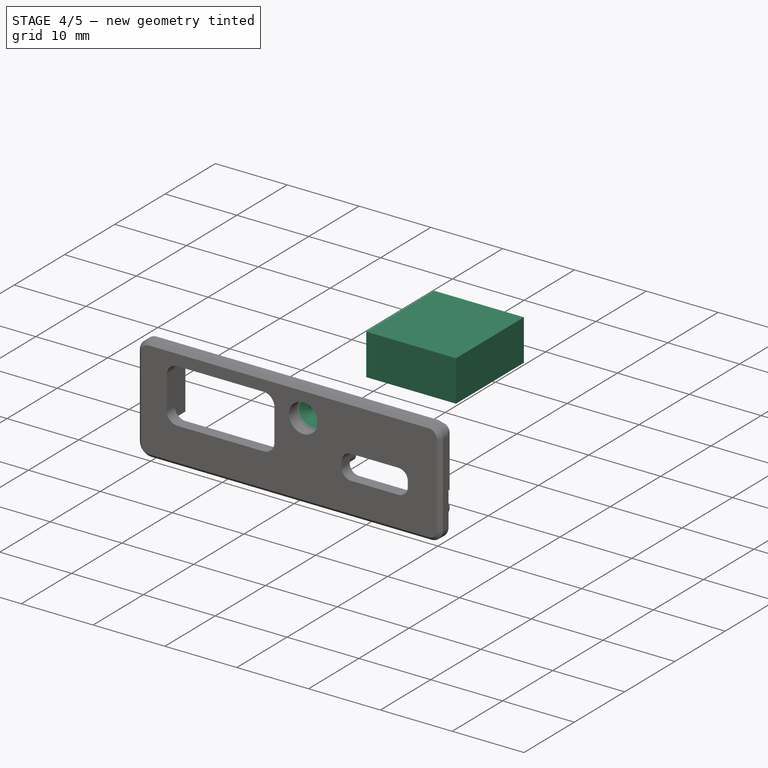
[diagram: stage 4 of 5 — iso view after this stage's code; geometry added in this stage tinted green]
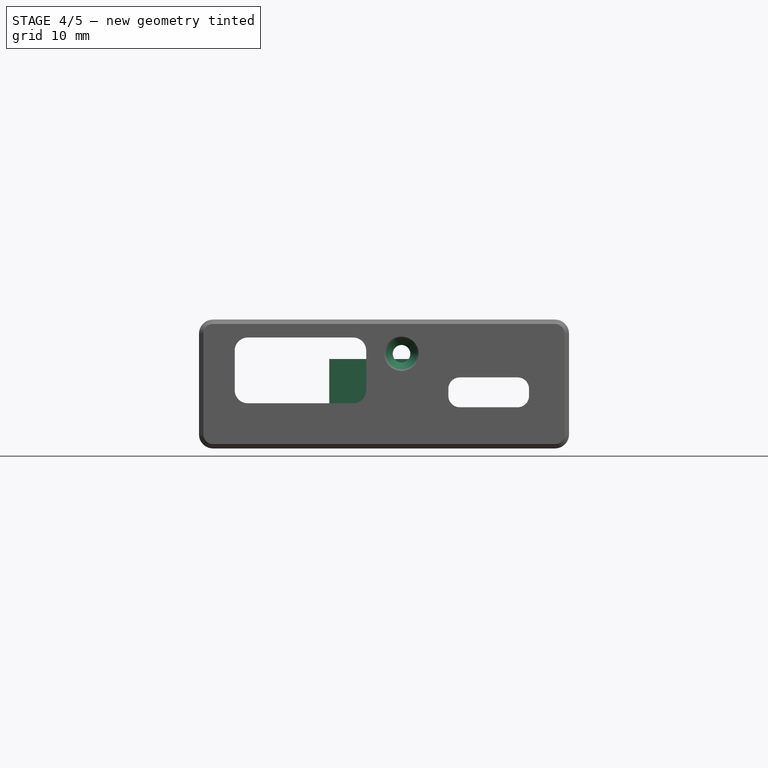
[diagram: stage 4 of 5 — front view after this stage's code; geometry added in this stage tinted green]
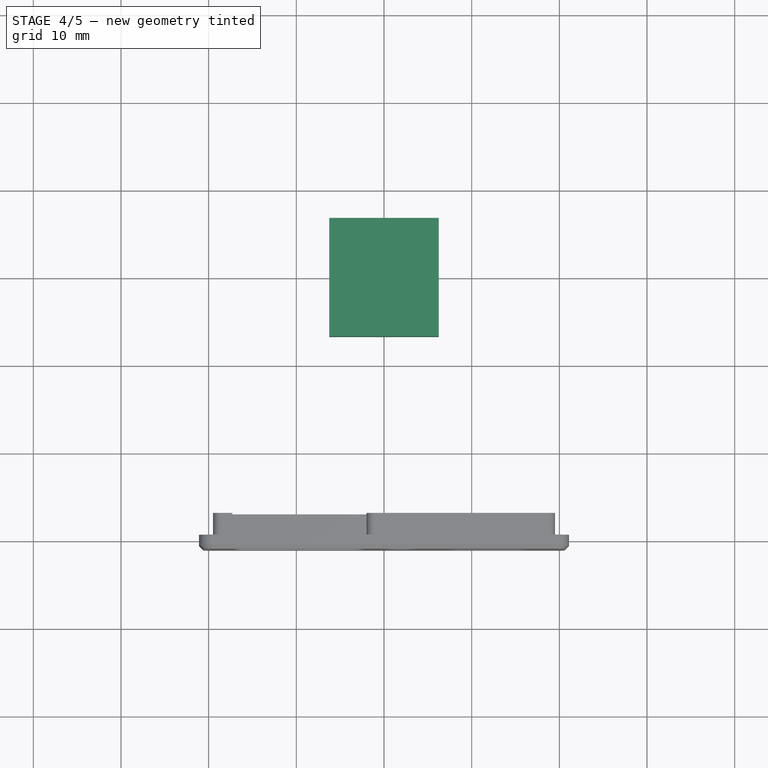
[diagram: stage 4 of 5 — top view after this stage's code; geometry added in this stage tinted green]
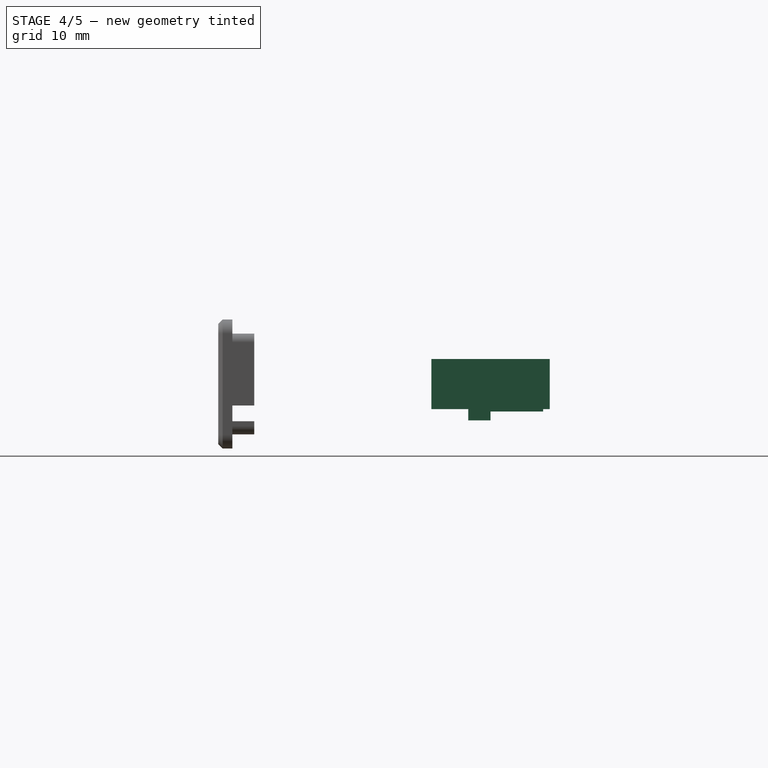
[diagram: stage 4 of 5 — right view after this stage's code; geometry added in this stage tinted green]
FEATURE [PartDesign::Body] Body003  label="USBC-Target"
  BaseFeature = -> Body002
  Group = -> [Clone]
  Origin = -> Origin004
  Placement = pos=(11.94,-27,0) rot=(0,0,1;0rad)
  Tip = -> Clone
FEATURE [Sketcher::SketchObject] Sketch009
  FullyConstrained = true
  MapMode = 5
  Placement = pos=(0,0,0) rot=(1,0,0;1.5708rad)
  Support = -> [XZ_Plane005]
  sketch-geometry (4):
    g0: LineSegment StartX=-6.25 StartY=7 StartZ=0 EndX=6.25 EndY=7 EndZ=0
    g1: LineSegment StartX=6.25 StartY=7 StartZ=0 EndX=6.25 EndY=1.28 EndZ=0
    g2: LineSegment StartX=6.25 StartY=1.28 StartZ=0 EndX=-6.25 EndY=1.28 EndZ=0
    g3: LineSegment StartX=-6.25 StartY=1.28 StartZ=0 EndX=-6.25 EndY=7 EndZ=0
  constraints (11):
    c: Coincident(g0,g1)
    c: Coincident(g1,g2)
    c: Coincident(g2,g3)
    c: Coincident(g3,g0)
    c: Horizontal(g0)
    c: Vertical(g1)
    c: Vertical(g3)
    c: DistanceY(g-1,g0) = 7
    c: DistanceX(g0,g0) = 12.5
    c: Symmetric(g2,g1,g-2)
    c: DistanceY(g3,g3) = 5.72
FEATURE [PartDesign::Pad] Pad007
  Direction = (0,-1,-2e-16)
  Length = 13.5
  Length2 = 10
  Midplane = true
  Placement = pos=(0,0,0) rot=(1,0,0;1.5708rad)
  Profile = -> Sketch009
  ReferenceAxis = -> Sketch009 [N_Axis]
  Type = 0
FEATURE [PartDesign::Body] Body004  label="USBA-Target"
  Group = -> [Sketch009,Pad007,Sketch010,Pad008,Sketch011,Pocket002]
  Origin = -> Origin005
  Placement = pos=(-9.53,-23.5,1.6) rot=(0,0,1;0rad)
  Tip = -> Pocket002
FEATURE [Sketcher::SketchObject] Sketch012
  FullyConstrained = true
  MapMode = 5
  Placement = pos=(0,0,0) rot=(1,0,0;1.5708rad)
  Support = -> [XZ_Plane006]
  sketch-geometry (5):
    g0: LineSegment StartX=-2.54 StartY=2.54 StartZ=0 EndX=2.54 EndY=2.54 EndZ=0
    g1: LineSegment StartX=2.54 StartY=2.54 StartZ=0 EndX=2.54 EndY=0 EndZ=0
    g2: LineSegment StartX=2.54 StartY=0 StartZ=0 EndX=-2.54 EndY=0 EndZ=0
    g3: LineSegment StartX=-2.54 StartY=0 StartZ=0 EndX=-2.54 EndY=2.54 EndZ=0
    g4: GeomPoint X=0 Y=0 Z=0
  constraints (12):
    c: Coincident(g0,g1)
    c: Coincident(g1,g2)
    c: Coincident(g2,g3)
    c: Coincident(g3,g0)
    c: Horizontal(g0)
    c: Horizontal(g2)
    c: Vertical(g1)
    c: Vertical(g3)
    c: Symmetric(g2,g1,g4)
    c: Coincident(g4,g-1)
    c: DistanceY(g1,g1) = 2.54
    c: DistanceX(g0,g0) = 5.08
FEATURE [PartDesign::Pad] Pad009
  Direction = (0,-1,2e-16)
  Length = 2.54
  Length2 = 10
  Placement = pos=(0,0,0) rot=(1,0,0;1.5708rad)
  Profile = -> Sketch012
  ReferenceAxis = -> Sketch012 [N_Axis]
  Type = 0
FEATURE [Sketcher::SketchObject] Sketch013
  ExternalGeometry = -> [Pad009]
  FullyConstrained = true
  MapMode = 5
  Placement = pos=(0,0,0) rot=(-1,0,0;1.5708rad)
  Support = -> [Pad009]
  sketch-geometry (12):
    g0: GeomPoint X=-2e-16 Y=-2.54 Z=0
    g1: GeomPoint X=-2e-16 Y=0 Z=0
    g2: GeomPoint X=1.27 Y=-1.27 Z=0
    g3: GeomPoint X=-1.27 Y=-1.27 Z=0
    g4: LineSegment StartX=1.52 StartY=-1.52 StartZ=0 EndX=1.02 EndY=-1.52 EndZ=0
    g5: LineSegment StartX=1.02 StartY=-1.52 StartZ=0 EndX=1.02 EndY=-1.02 EndZ=0
    g6: LineSegment StartX=1.02 StartY=-1.02 StartZ=0 EndX=1.52 EndY=-1.02 EndZ=0
    g7: LineSegment StartX=1.52 StartY=-1.02 StartZ=0 EndX=1.52 EndY=-1.52 EndZ=0
    g8: LineSegment StartX=-1.02 StartY=-1.52 StartZ=0 EndX=-1.52 EndY=-1.52 EndZ=0
    g9: LineSegment StartX=-1.52 StartY=-1.52 StartZ=0 EndX=-1.52 EndY=-1.02 EndZ=0
    g10: LineSegment StartX=-1.52 StartY=-1.02 StartZ=0 EndX=-1.02 EndY=-1.02 EndZ=0
    g11: LineSegment StartX=-1.02 StartY=-1.02 StartZ=0 EndX=-1.02 EndY=-1.52 EndZ=0
  constraints (26):
    c: Symmetric(g-4,g-5,g0)
    c: Symmetric(g-5,g-4,g1)
    c: Symmetric(g-4,g0,g2)
    c: Symmetric(g0,g-5,g3)
    c: Coincident(g4,g5)
    c: Coincident(g5,g6)
    c: Coincident(g6,g7)
    c: Coincident(g7,g4)
    c: Horizontal(g4)
    c: Horizontal(g6)
    c: Vertical(g5)
    c: Vertical(g7)
    c: Coincident(g8,g9)
    c: Coincident(g9,g10)
    c: Coincident(g10,g11)
    c: Coincident(g11,g8)
    c: Horizontal(g8)
    c: Horizontal(g10)
    c: Vertical(g9)
    c: Vertical(g11)
    c: Equal(g4,g5)
    c: Equal(g8,g11)
    c: Equal(g4,g8)
    c: DistanceY(g9,g9) = 0.5
    c: Symmetric(g6,g4,g2)
    c: Symmetric(g10,g8,g3)
FEATURE [PartDesign::Pad] Pad010
  BaseFeature = -> Pad009
  Direction = (0,1,-2e-16)
  Length = 6
  Length2 = 10
  Placement = pos=(0,0,0) rot=(1,0,0;1.5708rad)
  Profile = -> Sketch013
  ReferenceAxis = -> Sketch013 [N_Axis]
  Type = 0
FEATURE [Sketcher::SketchObject] Sketch029
  ExternalGeometry = -> [Pocket006]
  FullyConstrained = true
  MapMode = 5
  Placement = pos=(0,-29.45,0) rot=(1,0,0;1.5708rad)
  Support = -> [Pocket006]
  sketch-geometry (1):
    g0: Circle CenterX=2 CenterY=7.6 CenterZ=0 NormalX=0 NormalY=0 NormalZ=1 AngleXU=0 Radius=1
  constraints (2):
    c: Coincident(g0,g-3)
    c: Diameter(g0) = 2
FEATURE [PartDesign::Pocket] Pocket007
  BaseFeature = -> Pocket006
  Direction = (0,1,-2e-16)
  Length = 5
  Length2 = 5
  Profile = -> Sketch029
  ReferenceAxis = -> Sketch029 [N_Axis]
  Type = 1
FEATURE [PartDesign::Chamfer] Chamfer003
  Angle = 45
  Base = -> Pocket007 [Edge180]
  BaseFeature = -> Pocket007
  ChamferType = 0
  FlipDirection = false
  Size = 0.95
  Size2 = 1
  SupportTransform = false
  UseAllEdges = false
FEATURE [PartDesign::Body] Body008  label="Cover"
  Group = -> [Binder,Sketch,Pad,Chamfer,Sketch023,Pocket,Sketch024,Pad018,Binder001,Sketch028,Pocket006,Sketch029,Pocket007,Chamfer003]
  Origin = -> Origin009
  Tip = -> Chamfer003
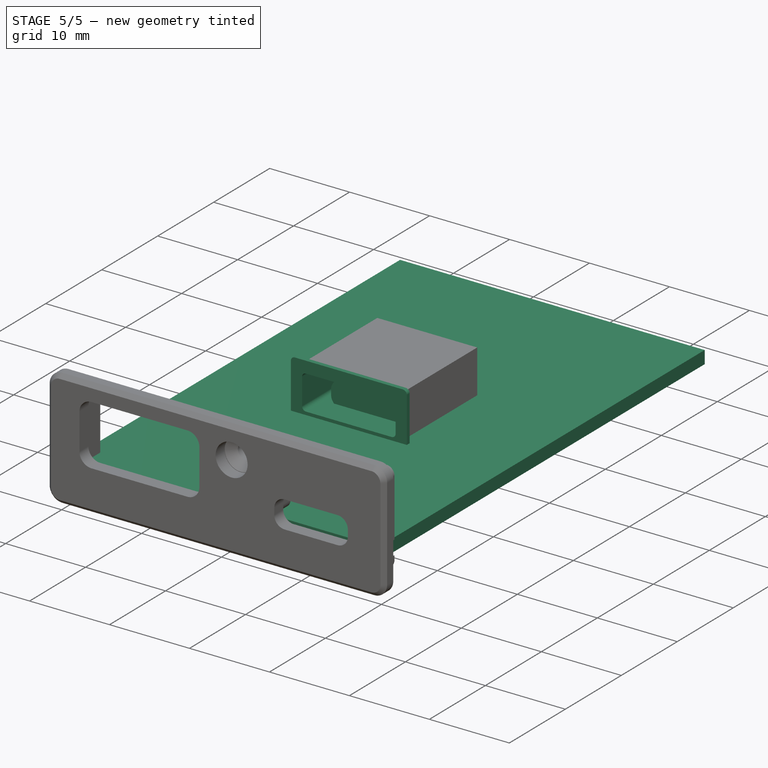
[diagram: stage 5 of 5 — iso view after this stage's code; geometry added in this stage tinted green]
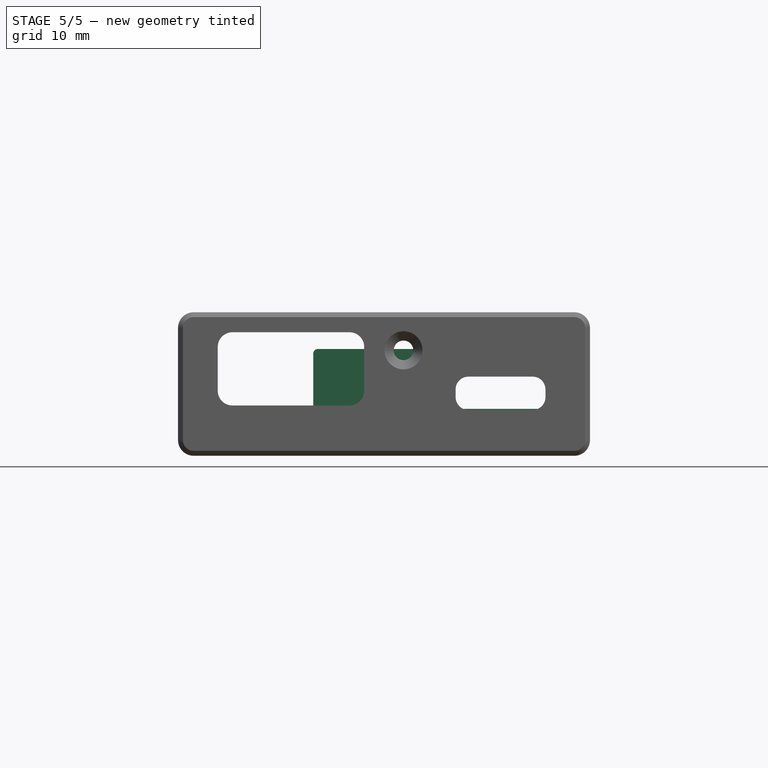
[diagram: stage 5 of 5 — front view after this stage's code; geometry added in this stage tinted green]
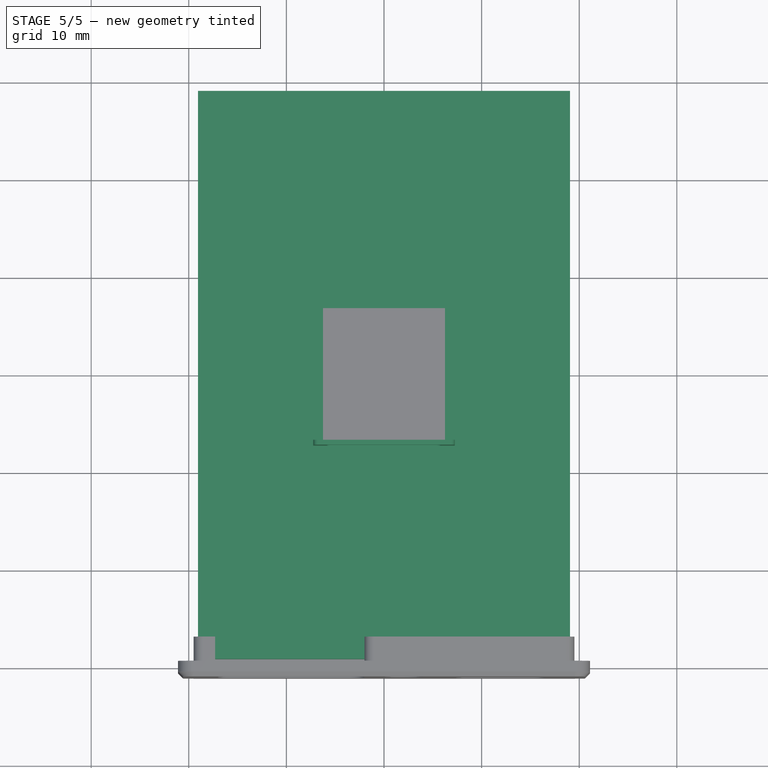
[diagram: stage 5 of 5 — top view after this stage's code; geometry added in this stage tinted green]
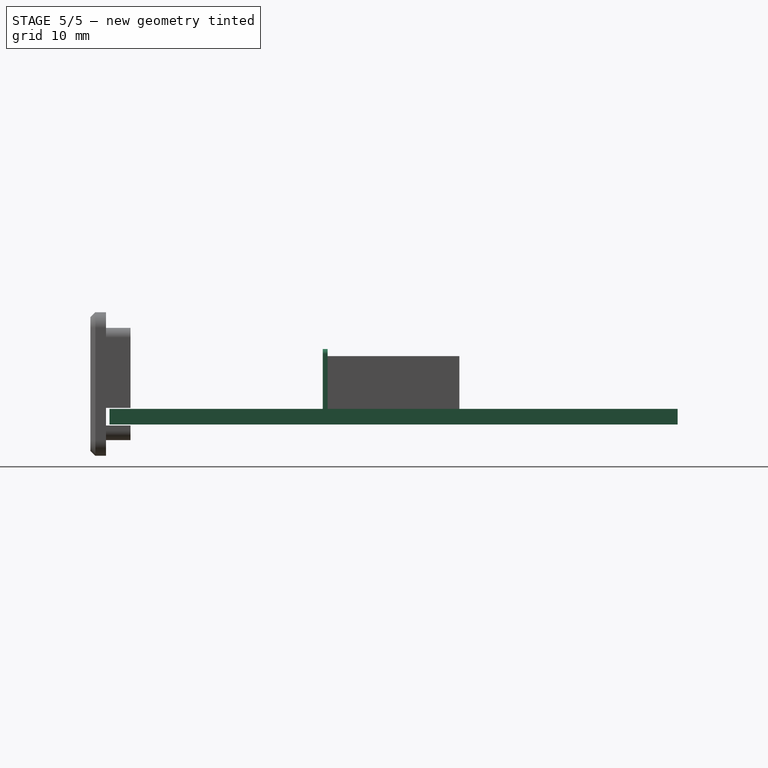
[diagram: stage 5 of 5 — right view after this stage's code; geometry added in this stage tinted green]
FEATURE [Sketcher::SketchObject] Sketch007
  FullyConstrained = true
  MapMode = 5
  Support = -> [XY_Plane]
  sketch-geometry (4):
    g0: LineSegment StartX=-19.05 StartY=29.1 StartZ=0 EndX=19.05 EndY=29.1 EndZ=0
    g1: LineSegment StartX=19.05 StartY=29.1 StartZ=0 EndX=19.05 EndY=-29.1 EndZ=0
    g2: LineSegment StartX=19.05 StartY=-29.1 StartZ=0 EndX=-19.05 EndY=-29.1 EndZ=0
    g3: LineSegment StartX=-19.05 StartY=-29.1 StartZ=0 EndX=-19.05 EndY=29.1 EndZ=0
  constraints (11):
    c: Coincident(g0,g1)
    c: Coincident(g1,g2)
    c: Coincident(g2,g3)
    c: Coincident(g3,g0)
    c: Horizontal(g0)
    c: Horizontal(g2)
    c: Vertical(g1)
    c: Vertical(g3)
    c: Symmetric(g2,g0,g-1)
    c: DistanceX(g0,g0) = 38.1
    c: DistanceY(g3,g3) = 58.2
FEATURE [PartDesign::Pad] Pad005
  Direction = (0,0,1)
  Length = 1.6
  Length2 = 10
  Profile = -> Sketch007
  ReferenceAxis = -> Sketch007 [N_Axis]
  Type = 0
FEATURE [PartDesign::Body] Body  label="PCB-Base"
  Group = -> [Sketch007,Pad005]
  Origin = -> Origin
  Tip = -> Pad005
FEATURE [Sketcher::SketchObject] Sketch008
  FullyConstrained = true
  MapMode = 5
  Placement = pos=(0,0,0) rot=(1,0,0;1.5708rad)
  Support = -> [XZ_Plane003]
  sketch-geometry (11):
    g0: ArcOfCircle CenterX=-3.2 CenterY=1.9 CenterZ=0 NormalX=0 NormalY=0 NormalZ=1 AngleXU=0 Radius=1.3 StartAngle=1.5708 EndAngle=3.14159
    g1: LineSegment StartX=-3.2 StartY=3.2 StartZ=0 EndX=3.2 EndY=3.2 EndZ=0
    g2: ArcOfCircle CenterX=3.2 CenterY=1.9 CenterZ=0 NormalX=0 NormalY=0 NormalZ=1 AngleXU=0 Radius=1.3 StartAngle=1e-16 EndAngle=1.5708
    g3: LineSegment StartX=4.5 StartY=1.9 StartZ=0 EndX=4.5 EndY=1.3 EndZ=0
    g4: ArcOfCircle CenterX=3.2 CenterY=1.3 CenterZ=0 NormalX=0 NormalY=0 NormalZ=1 AngleXU=0 Radius=1.3 StartAngle=4.71239 EndAngle=6.28319
    g5: LineSegment StartX=3.2 StartY=9.68e-14 StartZ=0 EndX=-3.2 EndY=9.68e-14 EndZ=0
    g6: ArcOfCircle CenterX=-3.2 CenterY=1.3 CenterZ=0 NormalX=0 NormalY=0 NormalZ=1 AngleXU=0 Radius=1.3 StartAngle=3.14159 EndAngle=4.71239
    g7: LineSegment StartX=-4.5 StartY=1.3 StartZ=0 EndX=-4.5 EndY=1.9 EndZ=0
    g8: GeomPoint X=-4.5 Y=3.2 Z=0
    g9: GeomPoint X=4.5 Y=0 Z=0
    g10: GeomPoint X=0 Y=0 Z=0
  constraints (24):
    c: Tangent(g0,g1) = 1.5708
    c: Tangent(g1,g2) = 1.5708
    c: Tangent(g2,g3) = 1.5708
    c: Tangent(g3,g4) = 1.5708
    c: Tangent(g4,g5) = 1.5708
    c: Tangent(g5,g6) = 1.5708
    c: Tangent(g6,g7) = 1.5708
    c: Tangent(g7,g0) = 1.5708
    c: Horizontal(g1)
    c: Horizontal(g5)
    c: Vertical(g3)
    c: Vertical(g7)
    c: Equal(g0,g2)
    c: Equal(g2,g4)
    c: Equal(g4,g6)
    c: PointOnObject(g8,g1)
    c: PointOnObject(g8,g7)
    c: PointOnObject(g9,g3)
    c: PointOnObject(g9,g5)
    c: DistanceX(g0,g2) = 9
    c: DistanceY(g4,g1) = 3.2
    c: Radius(g2) = 1.3
    c: Symmetric(g5,g4,g10)
    c: Coincident(g10,g-1)
FEATURE [PartDesign::Pad] Pad006
  Direction = (0,-1,2e-16)
  Length = 8
  Length2 = 10
  Midplane = true
  Placement = pos=(0,0,0) rot=(1,0,0;1.5708rad)
  Profile = -> Sketch008
  ReferenceAxis = -> Sketch008 [N_Axis]
  Type = 0
FEATURE [PartDesign::Body] Body002  label="USBC-Device"
  Group = -> [Sketch008,Pad006]
  Origin = -> Origin003
  Placement = pos=(0,27,1.6) rot=(0,0,1;0rad)
  Tip = -> Pad006
FEATURE [PartDesign::FeatureBase] Clone
  BaseFeature = -> Body002
  Placement = pos=(0,0,1.6) rot=(0,0,1;0rad)
FEATURE [Sketcher::SketchObject] Sketch010
  ExternalGeometry = -> [Pad007]
  FullyConstrained = true
  MapMode = 5
  Placement = pos=(0,-6.75,0) rot=(1,0,0;1.5708rad)
  Support = -> [Pad007]
  sketch-geometry (11):
    g0: ArcOfCircle CenterX=-6.75 CenterY=7.24 CenterZ=0 NormalX=0 NormalY=0 NormalZ=1 AngleXU=0 Radius=0.5 StartAngle=1.5708 EndAngle=3.14159
    g1: LineSegment StartX=-6.75 StartY=7.74 StartZ=0 EndX=6.75 EndY=7.74 EndZ=0
    g2: ArcOfCircle CenterX=6.75 CenterY=7.24 CenterZ=0 NormalX=0 NormalY=0 NormalZ=1 AngleXU=0 Radius=0.5 StartAngle=1e-16 EndAngle=1.5708
    g3: LineSegment StartX=7.25 StartY=7.24 StartZ=0 EndX=7.25 EndY=1.04 EndZ=0
    g4: ArcOfCircle CenterX=6.75 CenterY=1.04 CenterZ=0 NormalX=0 NormalY=0 NormalZ=1 AngleXU=0 Radius=0.5 StartAngle=4.71239 EndAngle=6.28319
    g5: LineSegment StartX=6.75 StartY=0.54 StartZ=0 EndX=-6.75 EndY=0.54 EndZ=0
    g6: ArcOfCircle CenterX=-6.75 CenterY=1.04 CenterZ=0 NormalX=0 NormalY=0 NormalZ=1 AngleXU=0 Radius=0.5 StartAngle=3.14159 EndAngle=4.71239
    g7: LineSegment StartX=-7.25 StartY=1.04 StartZ=0 EndX=-7.25 EndY=7.24 EndZ=0
    g8: GeomPoint X=-7.25 Y=7.74 Z=0
    g9: GeomPoint X=7.25 Y=0.54 Z=0
    g10: GeomPoint X=3e-16 Y=4.14 Z=0
  constraints (24):
    c: Tangent(g0,g1) = 1.5708
    c: Tangent(g1,g2) = 1.5708
    c: Tangent(g2,g3) = 1.5708
    c: Tangent(g3,g4) = 1.5708
    c: Tangent(g4,g5) = 1.5708
    c: Tangent(g5,g6) = 1.5708
    c: Tangent(g6,g7) = 1.5708
    c: Tangent(g7,g0) = 1.5708
    c: Horizontal(g1)
    c: Horizontal(g5)
    c: Vertical(g3)
    c: Vertical(g7)
    c: Equal(g0,g2)
    c: Equal(g2,g4)
    c: Equal(g4,g6)
    c: PointOnObject(g8,g1)
    c: PointOnObject(g8,g7)
    c: PointOnObject(g9,g3)
    c: PointOnObject(g9,g5)
    c: Radius(g2) = 0.5
    c: DistanceX(g0,g2) = 14.5
    c: DistanceY(g5,g0) = 7.2
    c: Symmetric(g-5,g-6,g10)
    c: Symmetric(g2,g6,g10)
FEATURE [PartDesign::Pad] Pad008
  BaseFeature = -> Pad007
  Direction = (0,-1,-2e-16)
  Length = 0.5
  Length2 = 10
  Placement = pos=(0,0,0) rot=(1,0,0;1.5708rad)
  Profile = -> Sketch010
  ReferenceAxis = -> Sketch010 [N_Axis]
  Type = 0
FEATURE [Sketcher::SketchObject] Sketch011
  ExternalGeometry = -> [Pad008]
  FullyConstrained = true
  MapMode = 5
  Placement = pos=(0,-7.25,-3e-16) rot=(1,0,0;1.5708rad)
  Support = -> [Pad008]
  sketch-geometry (11):
    g0: ArcOfCircle CenterX=-5.35 CenterY=5.79 CenterZ=0 NormalX=0 NormalY=0 NormalZ=1 AngleXU=0 Radius=0.5 StartAngle=1.5708 EndAngle=3.14159
    g1: LineSegment StartX=-5.35 StartY=6.29 StartZ=0 EndX=5.35 EndY=6.29 EndZ=0
    g2: ArcOfCircle CenterX=5.35 CenterY=5.79 CenterZ=0 NormalX=0 NormalY=0 NormalZ=1 AngleXU=0 Radius=0.5 StartAngle=0 EndAngle=1.5708
    g3: LineSegment StartX=5.85 StartY=5.79 StartZ=0 EndX=5.85 EndY=2.49 EndZ=0
    g4: ArcOfCircle CenterX=5.35 CenterY=2.49 CenterZ=0 NormalX=0 NormalY=0 NormalZ=1 AngleXU=0 Radius=0.5 StartAngle=4.71239 EndAngle=6.28319
    g5: LineSegment StartX=5.35 StartY=1.99 StartZ=0 EndX=-5.35 EndY=1.99 EndZ=0
    g6: ArcOfCircle CenterX=-5.35 CenterY=2.49 CenterZ=0 NormalX=0 NormalY=0 NormalZ=1 AngleXU=0 Radius=0.5 StartAngle=3.14159 EndAngle=4.71239
    g7: LineSegment StartX=-5.85 StartY=2.49 StartZ=0 EndX=-5.85 EndY=5.79 EndZ=0
    g8: GeomPoint X=-5.85 Y=6.29 Z=0
    g9: GeomPoint X=5.85 Y=1.99 Z=0
    g10: GeomPoint X=1.4e-15 Y=4.14 Z=0
  constraints (24):
    c: Tangent(g0,g1) = 1.5708
    c: Tangent(g1,g2) = 1.5708
    c: Tangent(g2,g3) = 1.5708
    c: Tangent(g3,g4) = 1.5708
    c: Tangent(g4,g5) = 1.5708
    c: Tangent(g5,g6) = 1.5708
    c: Tangent(g6,g7) = 1.5708
    c: Tangent(g7,g0) = 1.5708
    c: Horizontal(g1)
    c: Horizontal(g5)
    c: Vertical(g3)
    c: Vertical(g7)
    c: Equal(g0,g2)
    c: Equal(g2,g4)
    c: Equal(g4,g6)
    c: PointOnObject(g8,g1)
    c: PointOnObject(g8,g7)
    c: PointOnObject(g9,g3)
    c: PointOnObject(g9,g5)
    c: Radius(g2) = 0.5
    c: Symmetric(g-6,g-4,g10)
    c: DistanceX(g0,g2) = 11.7
    c: DistanceY(g5,g0) = 4.3
    c: Symmetric(g6,g2,g10)
FEATURE [PartDesign::Pocket] Pocket002
  BaseFeature = -> Pad008
  Direction = (0,1,2e-16)
  Length = 12
  Length2 = 5
  Placement = pos=(0,0,0) rot=(1,0,0;1.5708rad)
  Profile = -> Sketch011
  ReferenceAxis = -> Sketch011 [N_Axis]
  Type = 0
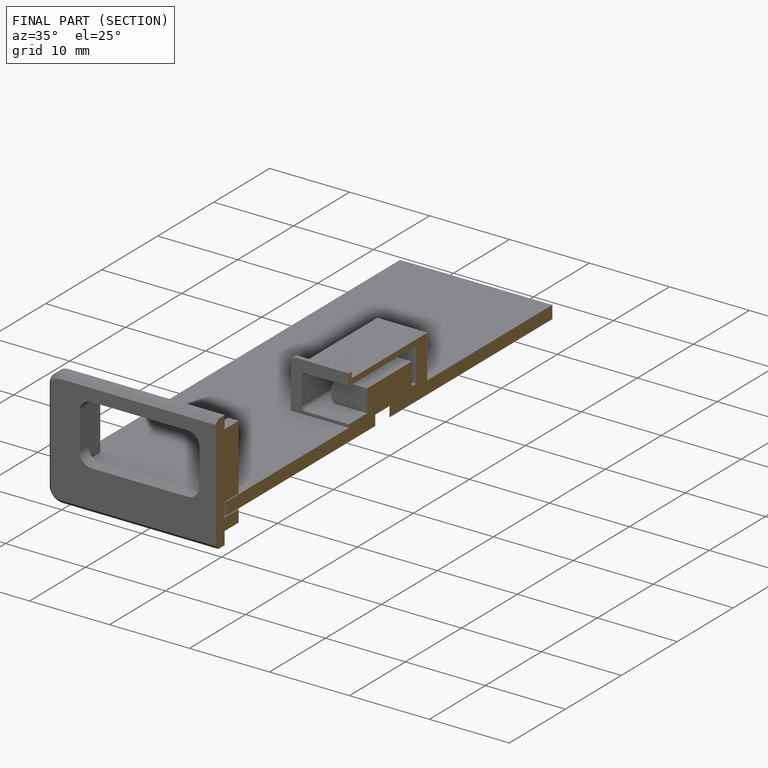
[diagram: finished part — half-section view (interior)]
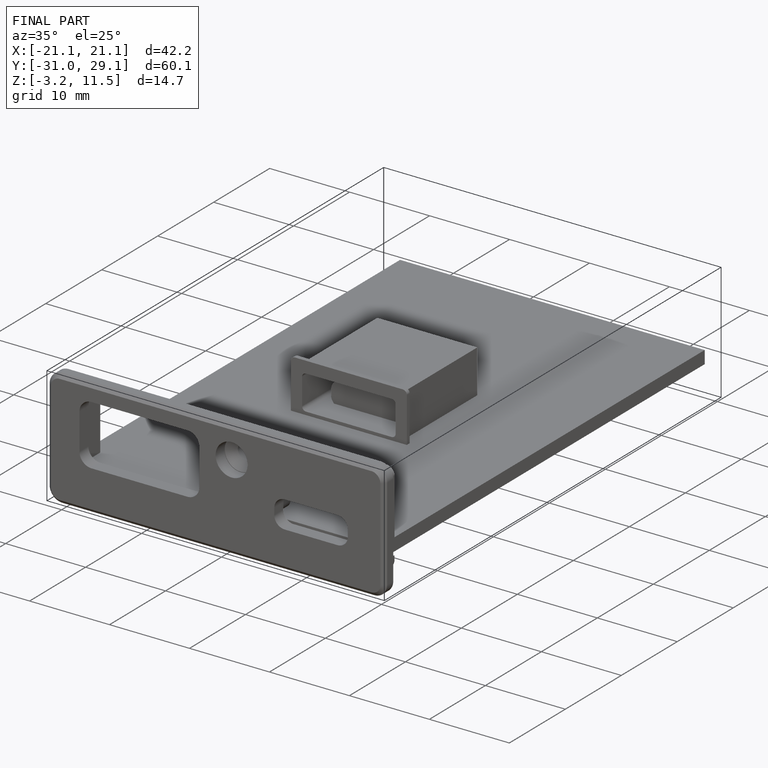
[diagram: finished part — iso view with bounding-box wireframe]
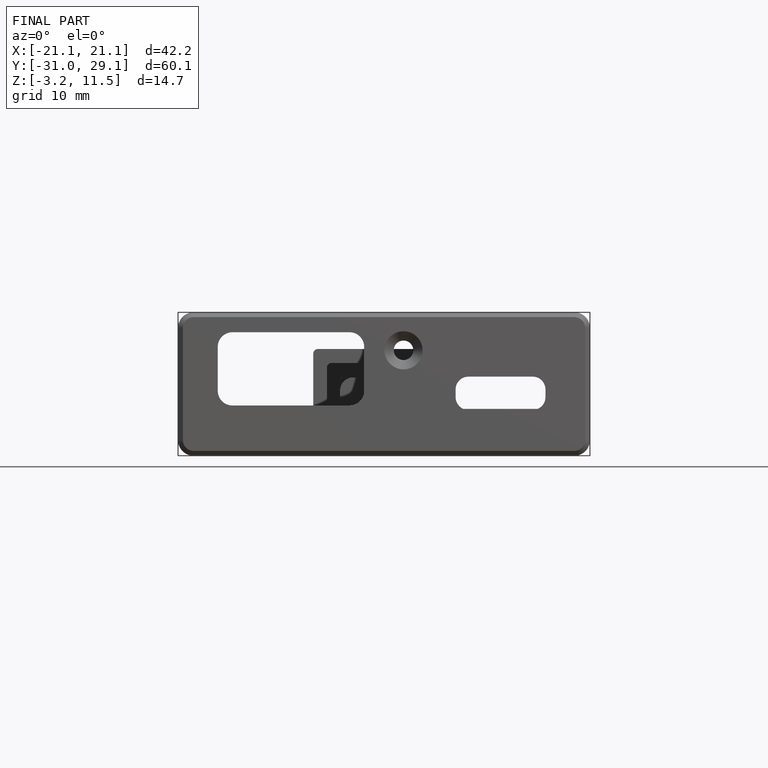
[diagram: finished part — front view with bounding-box wireframe]
